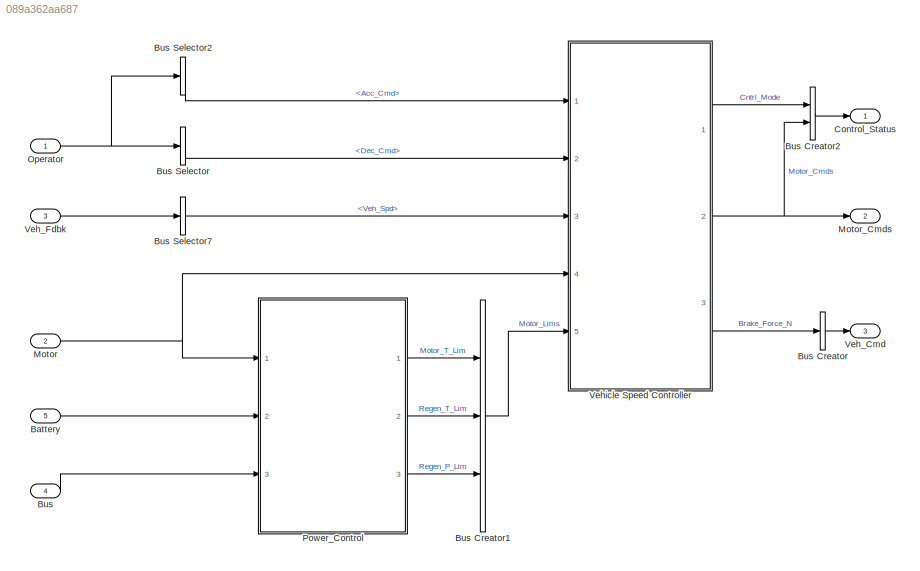
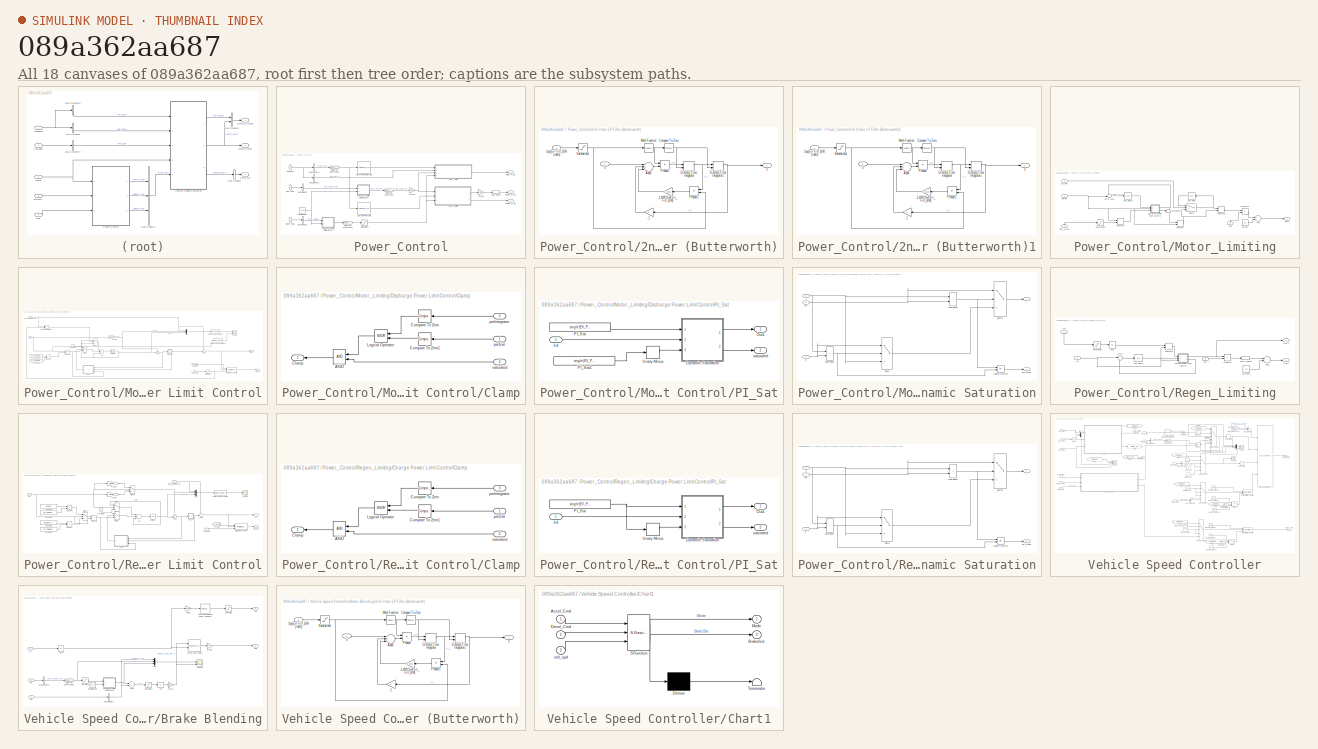
[diagram: thumbnail index - all 18 canvases of the model, root first then tree order]
MODEL slx_089a362aa687
KIND model
CONFIG InitFcn = %EV_Param_Update \n% update the number of strings (discretized)\nnumStrings = round(Opti_numStrings);\n%disp(['Number of strings: ' num2str(numStrings)])\n% update the effective capacity based on the number of strings\nEV_Param.Battery_Det.Rated_Capacity = 28.5*numStrings; %A*hr\nEV_Param.Battery_Det.DP = 1.5*fliplr([1500 1500 1600 1450 1325 1125 925 675 425 175 ])./8*EV_Param.Battery_Det.Rated_Capacity...<+1192ch>
BLOCK [Inport] Battery
  BusOutputAsStruct = on
  IconDisplay = Port number
  OutDataTypeStr = Bus: Batt_Fdbk
  Port = 5
BLOCK [Inport] Bus
  BusOutputAsStruct = on
  IconDisplay = Port number
  OutDataTypeStr = Bus: Bus_Fdbk
  Port = 4
BLOCK [BusCreator] Bus Creator
  DisplayOption = bar
  Inputs = 1
  Ports = [1, 1]
BLOCK [BusCreator] Bus Creator1
  DisplayOption = bar
  Inputs = 3
  Ports = [3, 1]
BLOCK [BusCreator] Bus Creator2
  DisplayOption = bar
  Inputs = 2
  Ports = [2, 1]
BLOCK [BusSelector] Bus Selector
  OutputSignals = Dec_Cmd
  Ports = [1, 1]
BLOCK [BusSelector] Bus Selector2
  OutputSignals = Acc_Cmd
  Ports = [1, 1]
BLOCK [BusSelector] Bus Selector7
  OutputSignals = Veh_Spd
  Ports = [1, 1]
BLOCK [Outport] Control_Status
  IconDisplay = Port number
  OutDataTypeStr = Bus: Cntrl_Status
BLOCK [Inport] Motor
  BusOutputAsStruct = on
  IconDisplay = Port number
  OutDataTypeStr = Bus: Motor_Sys_Fdbk
  Port = 2
BLOCK [Outport] Motor_Cmds
  IconDisplay = Port number
  OutDataTypeStr = Bus: Motor_Cmds
  Port = 2
BLOCK [Inport] Operator
  IconDisplay = Port number
  OutDataTypeStr = Bus: Op_Cmds
BLOCK [SubSystem] Power_Control
  FunctionWithSeparateData = off
  MaskHideContents = off
  MinAlgLoopOccurrences = off
  Opaque = off
  Ports = [3, 3]
  PropExecContextOutsideSubsystem = off
  RTWSystemCode = Auto
  RequestExecContextInheritance = off
BLOCK [SubSystem] Power_Control/2nd Order LP Filter (Butterworth)
  FunctionWithSeparateData = off
  MaskHideContents = off
  MinAlgLoopOccurrences = off
  Opaque = off
  Ports = [2, 1]
  PropExecContextOutsideSubsystem = off
  RTWSystemCode = Auto
  RequestExecContextInheritance = off
BLOCK [Gain] Power_Control/2nd Order LP Filter (Butterworth)/-1
  Gain = -1
  OutDataTypeStr = Inherit: Inherit via internal rule
  ParamDataTypeStr = Inherit: Inherit via internal rule
  SaturateOnIntegerOverflow = off
BLOCK [Gain] Power_Control/2nd Order LP Filter (Butterworth)/-1.4142//(Spd_Err_Filt_BW)
  Gain = -1.4142
  OutDataTypeStr = Inherit: Inherit via internal rule
  ParamDataTypeStr = Inherit: Inherit via internal rule
  SaturateOnIntegerOverflow = off
BLOCK [Sum] Power_Control/2nd Order LP Filter (Butterworth)/Add4
  InputSameDT = off
  Inputs = +++
  OutDataTypeStr = Inherit: Inherit via internal rule
  Ports = [3, 1]
  SaturateOnIntegerOverflow = off
BLOCK [Reference] Power_Control/2nd Order LP Filter (Butterworth)/Compare To Zero  REF=simulink/Logic and Bit
Operations/Compare
To Zero
  OutDataTypeStr = uint8
  Ports = [1, 1]
  SourceBlock = simulink/Logic and Bit\nOperations/Compare\nTo Zero
  SourceType = Compare To Zero
  ZeroCross = on
  relop = <=
BLOCK [DiscreteIntegrator] Power_Control/2nd Order LP Filter (Butterworth)/Discrete-Time Integrator
  ExternalReset = rising
  ICPrevOutput = DiscIntNeverNeededParam
  ICPrevScaledInput = DiscIntNeverNeededParam
  Ports = [2, 1]
  SampleTime = DT
BLOCK [DiscreteIntegrator] Power_Control/2nd Order LP Filter (Butterworth)/Discrete-Time Integrator1
  ExternalReset = rising
  ICPrevOutput = DiscIntNeverNeededParam
  ICPrevScaledInput = DiscIntNeverNeededParam
  Ports = [2, 1]
  SampleTime = DT
BLOCK [Math] Power_Control/2nd Order LP Filter (Butterworth)/Math Function
  Operator = square
  Ports = [1, 1]
BLOCK [Product] Power_Control/2nd Order LP Filter (Butterworth)/Product
  InputSameDT = off
  OutDataTypeStr = Inherit: Inherit via internal rule
  Ports = [2, 1]
  SaturateOnIntegerOverflow = off
BLOCK [Product] Power_Control/2nd Order LP Filter (Butterworth)/Product1
  InputSameDT = off
  Inputs = */
  OutDataTypeStr = Inherit: Inherit via internal rule
  Ports = [2, 1]
  SaturateOnIntegerOverflow = off
BLOCK [Saturate] Power_Control/2nd Order LP Filter (Butterworth)/Saturation1
  InputPortMap = u0
  LowerLimit = .001
  Ports = [1, 1]
  UpperLimit = 2*pi*5000
BLOCK [Inport] Power_Control/2nd Order LP Filter (Butterworth)/Spd_Err_Filt_BW [rad//s]
  IconDisplay = Port number
  Port = 2
BLOCK [Inport] Power_Control/2nd Order LP Filter (Butterworth)/u
  IconDisplay = Port number
BLOCK [Outport] Power_Control/2nd Order LP Filter (Butterworth)/y
  IconDisplay = Port number
BLOCK [SubSystem] Power_Control/2nd Order LP Filter (Butterworth)1
  FunctionWithSeparateData = off
  MaskHideContents = off
  MinAlgLoopOccurrences = off
  Opaque = off
  Ports = [2, 1]
  PropExecContextOutsideSubsystem = off
  RTWSystemCode = Auto
  RequestExecContextInheritance = off
BLOCK [Gain] Power_Control/2nd Order LP Filter (Butterworth)1/-1
  Gain = -1
  OutDataTypeStr = Inherit: Inherit via internal rule
  ParamDataTypeStr = Inherit: Inherit via internal rule
  SaturateOnIntegerOverflow = off
BLOCK [Gain] Power_Control/2nd Order LP Filter (Butterworth)1/-1.4142//(Spd_Err_Filt_BW)
  Gain = -1.4142
  OutDataTypeStr = Inherit: Inherit via internal rule
  ParamDataTypeStr = Inherit: Inherit via internal rule
  SaturateOnIntegerOverflow = off
BLOCK [Sum] Power_Control/2nd Order LP Filter (Butterworth)1/Add4
  InputSameDT = off
  Inputs = +++
  OutDataTypeStr = Inherit: Inherit via internal rule
  Ports = [3, 1]
  SaturateOnIntegerOverflow = off
BLOCK [Reference] Power_Control/2nd Order LP Filter (Butterworth)1/Compare To Zero  REF=simulink/Logic and Bit
Operations/Compare
To Zero
  OutDataTypeStr = uint8
  Ports = [1, 1]
  SourceBlock = simulink/Logic and Bit\nOperations/Compare\nTo Zero
  SourceType = Compare To Zero
  ZeroCross = on
  relop = <=
BLOCK [DiscreteIntegrator] Power_Control/2nd Order LP Filter (Butterworth)1/Discrete-Time Integrator
  ExternalReset = rising
  ICPrevOutput = DiscIntNeverNeededParam
  ICPrevScaledInput = DiscIntNeverNeededParam
  Ports = [2, 1]
  SampleTime = DT
BLOCK [DiscreteIntegrator] Power_Control/2nd Order LP Filter (Butterworth)1/Discrete-Time Integrator1
  ExternalReset = rising
  ICPrevOutput = DiscIntNeverNeededParam
  ICPrevScaledInput = DiscIntNeverNeededParam
  Ports = [2, 1]
  SampleTime = DT
BLOCK [Math] Power_Control/2nd Order LP Filter (Butterworth)1/Math Function
  Operator = square
  Ports = [1, 1]
BLOCK [Product] Power_Control/2nd Order LP Filter (Butterworth)1/Product
  InputSameDT = off
  OutDataTypeStr = Inherit: Inherit via internal rule
  Ports = [2, 1]
  SaturateOnIntegerOverflow = off
BLOCK [Product] Power_Control/2nd Order LP Filter (Butterworth)1/Product1
  InputSameDT = off
  Inputs = */
  OutDataTypeStr = Inherit: Inherit via internal rule
  Ports = [2, 1]
  SaturateOnIntegerOverflow = off
BLOCK [Saturate] Power_Control/2nd Order LP Filter (Butterworth)1/Saturation1
  InputPortMap = u0
  LowerLimit = .001
  Ports = [1, 1]
  UpperLimit = 2*pi*5000
BLOCK [Inport] Power_Control/2nd Order LP Filter (Butterworth)1/Spd_Err_Filt_BW [rad//s]
  IconDisplay = Port number
  Port = 2
BLOCK [Inport] Power_Control/2nd Order LP Filter (Butterworth)1/u
  IconDisplay = Port number
BLOCK [Outport] Power_Control/2nd Order LP Filter (Butterworth)1/y
  IconDisplay = Port number
BLOCK [Inport] Power_Control/Batt_Fdbk
  IconDisplay = Port number
  OutDataTypeStr = Bus: Batt_Fdbk
  Port = 2
BLOCK [BusSelector] Power_Control/Bus Selector
  OutputSignals = Bus_Power_kW
  Ports = [1, 1]
BLOCK [BusSelector] Power_Control/Bus Selector1
  OutputSignals = Motor_Fdbk.rotor_velocity
  Ports = [1, 1]
BLOCK [BusSelector] Power_Control/Bus Selector2
  OutputSignals = SOC_prct
  Ports = [1, 1]
BLOCK [BusSelector] Power_Control/Bus Selector3
  OutputSignals = Current_A
  Ports = [1, 1]
BLOCK [Inport] Power_Control/Bus_Fdbk
  IconDisplay = Port number
  OutDataTypeStr = Bus: Bus_Fdbk
  Port = 3
BLOCK [Lookup_n-D] Power_Control/Charge Power Limit
  BeginIndexSearchUsingPreviousIndexResult = on
  BreakpointsForDimension1 = EV_Param.Battery_Det.SOC
  InternalRulePriority = Speed
  NumberOfTableDimensions = 1
  Ports = [1, 1]
  RndMeth = Simplest
  Table = EV_Param.Battery_Det.CP
BLOCK [Constant] Power_Control/Cut-off [radps]
  OutDataTypeStr = single
  SampleTime = -1
  Value = 2*2*pi
BLOCK [DataTypeConversion] Power_Control/Data Type Conversion
  OutDataTypeStr = single
  RndMeth = Floor
  SaturateOnIntegerOverflow = off
BLOCK [DataTypeConversion] Power_Control/Data Type Conversion1
  OutDataTypeStr = single
  RndMeth = Floor
  SaturateOnIntegerOverflow = off
BLOCK [DataTypeConversion] Power_Control/Data Type Conversion2
  OutDataTypeStr = single
  RndMeth = Floor
  SaturateOnIntegerOverflow = off
BLOCK [Lookup_n-D] Power_Control/Discharge Power Limit
  BeginIndexSearchUsingPreviousIndexResult = on
  BreakpointsForDimension1 = EV_Param.Battery_Det.SOC
  ExtrapMethod = Clip
  InternalRulePriority = Speed
  NumberOfTableDimensions = 1
  Ports = [1, 1]
  RndMeth = Simplest
  Table = EV_Param.Battery_Det.DP
  UseLastTableValue = on
BLOCK [Inport] Power_Control/Motor_Fdbk
  IconDisplay = Port number
  OutDataTypeStr = Bus: Motor_Sys_Fdbk
BLOCK [SubSystem] Power_Control/Motor_Limiting
  FunctionWithSeparateData = off
  MaskHideContents = off
  MinAlgLoopOccurrences = off
  Opaque = off
  Ports = [4, 1]
  PropExecContextOutsideSubsystem = off
  RTWSystemCode = Auto
  RequestExecContextInheritance = off
BLOCK [Sum] Power_Control/Motor_Limiting/Add
  InputSameDT = off
  OutDataTypeStr = Inherit: Inherit via internal rule
  Ports = [2, 1]
  SaturateOnIntegerOverflow = off
BLOCK [Inport] Power_Control/Motor_Limiting/Current
  IconDisplay = Port number
  Port = 2
BLOCK [SubSystem] Power_Control/Motor_Limiting/Discharge Power Limit Control
  FunctionWithSeparateData = off
  MaskHideContents = off
  MinAlgLoopOccurrences = off
  Opaque = off
  Ports = [3, 2]
  PropExecContextOutsideSubsystem = off
  RTWSystemCode = Auto
  RequestExecContextInheritance = off
BLOCK [Sum] Power_Control/Motor_Limiting/Discharge Power Limit Control/Add
  AttributesFormatString = -----------------------------\nMin = %<OutMin>\nMax = %<OutMax>\nSat = %<SaturateOnIntegerOverflow>
  InputSameDT = off
  Inputs = -++
  OutDataTypeStr = DT_PRECISION_HI
  OutMax = ctrlConst.CurrentMax*2
  OutMin = -ctrlConst.CurrentMax*2
  Ports = [3, 1]
BLOCK [SubSystem] Power_Control/Motor_Limiting/Discharge Power Limit Control/Clamp
  FunctionWithSeparateData = off
  MaskHideContents = off
  MinAlgLoopOccurrences = off
  Opaque = off
  Ports = [3, 1]
  PropExecContextOutsideSubsystem = off
  RTWSystemCode = Auto
  RequestExecContextInheritance = off
BLOCK [Logic] Power_Control/Motor_Limiting/Discharge Power Limit Control/Clamp/AND
  OutDataTypeStr = boolean
  Ports = [2, 1]
BLOCK [Outport] Power_Control/Motor_Limiting/Discharge Power Limit Control/Clamp/Clamp
  IconDisplay = Port number
BLOCK [Reference] Power_Control/Motor_Limiting/Discharge Power Limit Control/Clamp/Compare To Zero  REF=simulink/Logic and Bit
Operations/Compare
To Zero
  OutDataTypeStr = boolean
  Ports = [1, 1]
  SourceBlock = simulink/Logic and Bit\nOperations/Compare\nTo Zero
  SourceType = Compare To Zero
  ZeroCross = on
  relop = <=
BLOCK [Reference] Power_Control/Motor_Limiting/Discharge Power Limit Control/Clamp/Compare To Zero1  REF=simulink/Logic and Bit
Operations/Compare
To Zero
  OutDataTypeStr = boolean
  Ports = [1, 1]
  SourceBlock = simulink/Logic and Bit\nOperations/Compare\nTo Zero
  SourceType = Compare To Zero
  ZeroCross = on
  relop = <=
BLOCK [Logic] Power_Control/Motor_Limiting/Discharge Power Limit Control/Clamp/Logical Operator
  AllPortsSameDT = off
  Operator = NXOR
  OutDataTypeStr = boolean
  Ports = [2, 1]
BLOCK [Inport] Power_Control/Motor_Limiting/Discharge Power Limit Control/Clamp/preIntegrator
  IconDisplay = Port number
  Port = 3
BLOCK [Inport] Power_Control/Motor_Limiting/Discharge Power Limit Control/Clamp/preSat
  IconDisplay = Port number
BLOCK [Inport] Power_Control/Motor_Limiting/Discharge Power Limit Control/Clamp/saturated
  IconDisplay = Port number
  Port = 2
BLOCK [Constant] Power_Control/Motor_Limiting/Discharge Power Limit Control/Constant
  OutDataTypeStr = Inherit: Inherit via back propagation
  PreserveConstantTs = on
  SampleTime = -1
  Value = 0
BLOCK [Constant] Power_Control/Motor_Limiting/Discharge Power Limit Control/Constant1
  SampleTime = -1
  Value = EV_Param.Battery_Det.PowerKi*.125
BLOCK [Constant] Power_Control/Motor_Limiting/Discharge Power Limit Control/Constant2
  OutDataTypeStr = DT_PRECISION_LO
  SampleTime = -1
  Value = EV_Param.Control.Pwr_Cntrl_TS
BLOCK [DataTypeConversion] Power_Control/Motor_Limiting/Discharge Power Limit Control/Data Type Conversion
  OutDataTypeStr = double
  RndMeth = Floor
  SaturateOnIntegerOverflow = off
BLOCK [DataTypeConversion] Power_Control/Motor_Limiting/Discharge Power Limit Control/Data Type Conversion1
  OutDataTypeStr = double
  RndMeth = Floor
  SaturateOnIntegerOverflow = off
BLOCK [Inport] Power_Control/Motor_Limiting/Discharge Power Limit Control/Err
  IconDisplay = Port number
BLOCK [Inport] Power_Control/Motor_Limiting/Discharge Power Limit Control/Input_Disturbance
  IconDisplay = Port number
  Port = 3
BLOCK [Outport] Power_Control/Motor_Limiting/Discharge Power Limit Control/Lim_Out
  IconDisplay = Port number
  Port = 2
BLOCK [Mux] Power_Control/Motor_Limiting/Discharge Power Limit Control/Mux
  DisplayOption = bar
  Inputs = 3
  Ports = [3, 1]
BLOCK [Outport] Power_Control/Motor_Limiting/Discharge Power Limit Control/Out
  IconDisplay = Port number
BLOCK [SubSystem] Power_Control/Motor_Limiting/Discharge Power Limit Control/PI_Sat
  FunctionWithSeparateData = off
  MaskHideContents = off
  MinAlgLoopOccurrences = off
  Opaque = off
  Ports = [1, 2]
  PropExecContextOutsideSubsystem = off
  RTWSystemCode = Auto
  RequestExecContextInheritance = off
BLOCK [SubSystem] Power_Control/Motor_Limiting/Discharge Power Limit Control/PI_Sat/Dynamic Saturation
  FunctionWithSeparateData = off
  MaskHideContents = off
  MinAlgLoopOccurrences = off
  Opaque = off
  Ports = [3, 2]
  PropExecContextOutsideSubsystem = off
  RTWSystemCode = Auto
  RequestExecContextInheritance = off
BLOCK [Logic] Power_Control/Motor_Limiting/Discharge Power Limit Control/PI_Sat/Dynamic Saturation/Logical Operator
  AllPortsSameDT = off
  Operator = OR
  OutDataTypeStr = boolean
  Ports = [2, 1]
BLOCK [RelationalOperator] Power_Control/Motor_Limiting/Discharge Power Limit Control/PI_Sat/Dynamic Saturation/LowerRelop1
  DisableCoverage = on
  InputSameDT = off
  Operator = >
  OutDataTypeStr = boolean
  Ports = [2, 1]
BLOCK [Switch] Power_Control/Motor_Limiting/Discharge Power Limit Control/PI_Sat/Dynamic Saturation/Switch
  Criteria = u2 ~= 0
  InputSameDT = off
  SaturateOnIntegerOverflow = off
  ZeroCross = off
BLOCK [Switch] Power_Control/Motor_Limiting/Discharge Power Limit Control/PI_Sat/Dynamic Saturation/Switch2
  Criteria = u2 ~= 0
  InputSameDT = off
  SaturateOnIntegerOverflow = off
  ZeroCross = off
BLOCK [RelationalOperator] Power_Control/Motor_Limiting/Discharge Power Limit Control/PI_Sat/Dynamic Saturation/UpperRelop
  DisableCoverage = on
  InputSameDT = off
  Operator = <
  OutDataTypeStr = boolean
  Ports = [2, 1]
BLOCK [Inport] Power_Control/Motor_Limiting/Discharge Power Limit Control/PI_Sat/Dynamic Saturation/lo
  IconDisplay = Port number
  Port = 3
BLOCK [Outport] Power_Control/Motor_Limiting/Discharge Power Limit Control/PI_Sat/Dynamic Saturation/sat_mode
  IconDisplay = Port number
  Port = 2
BLOCK [Inport] Power_Control/Motor_Limiting/Discharge Power Limit Control/PI_Sat/Dynamic Saturation/u
  IconDisplay = Port number
  Port = 2
BLOCK [Inport] Power_Control/Motor_Limiting/Discharge Power Limit Control/PI_Sat/Dynamic Saturation/up
  IconDisplay = Port number
BLOCK [Outport] Power_Control/Motor_Limiting/Discharge Power Limit Control/PI_Sat/Dynamic Saturation/y
  IconDisplay = Port number
BLOCK [Inport] Power_Control/Motor_Limiting/Discharge Power Limit Control/PI_Sat/In1
  IconDisplay = Port number
BLOCK [Outport] Power_Control/Motor_Limiting/Discharge Power Limit Control/PI_Sat/Out1
  IconDisplay = Port number
BLOCK [Constant] Power_Control/Motor_Limiting/Discharge Power Limit Control/PI_Sat/PI_Sat
  PreserveConstantTs = on
  Value = single(EV_Param.Battery_Det.DischargePowerPISat)*1.5
BLOCK [Constant] Power_Control/Motor_Limiting/Discharge Power Limit Control/PI_Sat/PI_Sat1
  PreserveConstantTs = on
  Value = single(EV_Param.Battery_Det.DischargePowerPISat)*.25
BLOCK [UnaryMinus] Power_Control/Motor_Limiting/Discharge Power Limit Control/PI_Sat/Unary Minus
BLOCK [Outport] Power_Control/Motor_Limiting/Discharge Power Limit Control/PI_Sat/saturated
  IconDisplay = Port number
  Port = 2
BLOCK [Constant] Power_Control/Motor_Limiting/Discharge Power Limit Control/PI_Sat1
  PreserveConstantTs = on
  SampleTime = -1
  Value = EV_Param.Battery_Det.DischargePowerPISat*0+100e3
BLOCK [Gain] Power_Control/Motor_Limiting/Discharge Power Limit Control/P_Gain
  AttributesFormatString = -----------------------------\n%<Gain>
  Gain = single(EV_Param.Battery_Det.PowerKp)
  OutDataTypeStr = Inherit: Inherit via internal rule
  ParamDataTypeStr = Inherit: Inherit from 'Gain'
  SaturateOnIntegerOverflow = off
BLOCK [Inport] Power_Control/Motor_Limiting/Discharge Power Limit Control/Power_Min
  IconDisplay = Port number
  Port = 2
BLOCK [Product] Power_Control/Motor_Limiting/Discharge Power Limit Control/Product
  InputSameDT = off
  OutDataTypeStr = single
  Ports = [2, 1]
  RndMeth = Floor
  SaturateOnIntegerOverflow = off
BLOCK [Product] Power_Control/Motor_Limiting/Discharge Power Limit Control/Product1
  InputSameDT = off
  OutDataTypeStr = single
  Ports = [2, 1]
  RndMeth = Floor
  SaturateOnIntegerOverflow = off
BLOCK [RelationalOperator] Power_Control/Motor_Limiting/Discharge Power Limit Control/Relational Operator
  InputSameDT = off
  Operator = <
  OutDataTypeStr = boolean
  Ports = [2, 1]
BLOCK [Reference] Power_Control/Motor_Limiting/Discharge Power Limit Control/Saturation Dynamic  REF=simulink/Discontinuities/Saturation
Dynamic
  DoSatur = off
  LockScale = off
  OutDataType = fixdt(1, 16)
  OutDataTypeStr = Inherit: Same as second input
  OutMax = []
  OutMin = []
  OutScaling = 2^-10
  OutputDataTypeScalingMode = Same as second input
  Ports = [3, 1]
  RndMeth = Floor
  SourceBlock = simulink/Discontinuities/Saturation\nDynamic
  SourceType = Saturation Dynamic
BLOCK [Saturate] Power_Control/Motor_Limiting/Discharge Power Limit Control/Saturation1
  InputPortMap = u0
  LowerLimit = 0
  Ports = [1, 1]
  UpperLimit = max(EV_Param.Battery_Det.DP)
BLOCK [Scope] Power_Control/Motor_Limiting/Discharge Power Limit Control/Scope
  DataFormat = StructureWithTime
  Floating = off
  LimitDataPoints = off
  NumInputPorts = 2
  Ports = [2]
  SampleTime = 0
  SaveName = ScopeData19
  ShowLegends = off
  TimeRange = 18
  YMax = 65000~0
  YMin = -5000~-52500
  ZoomMode = yonly
BLOCK [Sum] Power_Control/Motor_Limiting/Discharge Power Limit Control/Sum
  IconShape = round
  InputSameDT = off
  Inputs = ++|
  OutDataTypeStr = Inherit: Inherit via internal rule
  Ports = [2, 1]
  SaturateOnIntegerOverflow = off
BLOCK [Sum] Power_Control/Motor_Limiting/Discharge Power Limit Control/Sum1
  IconShape = round
  InputSameDT = off
  Inputs = ++|
  OutDataTypeStr = Inherit: Inherit via internal rule
  Ports = [2, 1]
  SaturateOnIntegerOverflow = off
BLOCK [Switch] Power_Control/Motor_Limiting/Discharge Power Limit Control/Switch
  Criteria = u2 > Threshold
  SaturateOnIntegerOverflow = off
BLOCK [Switch] Power_Control/Motor_Limiting/Discharge Power Limit Control/Switch1
  Criteria = u2 > Threshold
  SaturateOnIntegerOverflow = off
BLOCK [UnitDelay] Power_Control/Motor_Limiting/Discharge Power Limit Control/Unit Delay
  InputProcessing = Elements as channels (sample based)
  SampleTime = -1
BLOCK [Sum] Power_Control/Motor_Limiting/Error Sum
  IconShape = round
  InputSameDT = off
  Inputs = -+|
  OutDataTypeStr = DT_PRECISION_LO
  OutMax = 2*ctrlConst.VelocityMax
  OutMin = -2*ctrlConst.VelocityMax
  Ports = [2, 1]
  SaturateOnIntegerOverflow = off
BLOCK [MinMax] Power_Control/Motor_Limiting/MinMax2
  Function = max
  InputSameDT = off
  Inputs = 2
  Ports = [2, 1]
  SaturateOnIntegerOverflow = off
BLOCK [MinMax] Power_Control/Motor_Limiting/MinMax3
  InputSameDT = off
  Inputs = 2
  Ports = [2, 1]
  SaturateOnIntegerOverflow = off
BLOCK [MinMax] Power_Control/Motor_Limiting/MinMax4
  Function = max
  InputSameDT = off
  Inputs = 2
  Ports = [2, 1]
  SaturateOnIntegerOverflow = off
BLOCK [Constant] Power_Control/Motor_Limiting/Offset
  OutDataTypeStr = single
  SampleTime = -1
  Value = 25
BLOCK [Outport] Power_Control/Motor_Limiting/Out2
  IconDisplay = Port number
BLOCK [Product] Power_Control/Motor_Limiting/Product3
  InputSameDT = off
  Inputs = */
  OutDataTypeStr = Inherit: Inherit via internal rule
  Ports = [2, 1]
  RndMeth = Floor
  SaturateOnIntegerOverflow = off
BLOCK [Inport] Power_Control/Motor_Limiting/PwrRef
  IconDisplay = Port number
BLOCK [Inport] Power_Control/Motor_Limiting/Pwr_Actual
  IconDisplay = Port number
  Port = 3
BLOCK [Saturate] Power_Control/Motor_Limiting/Saturation1
  InputPortMap = u0
  LowerLimit = 0
  Ports = [1, 1]
  UpperLimit = 100e3
BLOCK [Inport] Power_Control/Motor_Limiting/Spd
  IconDisplay = Port number
  Port = 4
BLOCK [Switch] Power_Control/Motor_Limiting/Switch
  InputSameDT = off
  SaturateOnIntegerOverflow = off
  Threshold = 250
BLOCK [Terminator] Power_Control/Motor_Limiting/Terminator
BLOCK [UnitDelay] Power_Control/Motor_Limiting/Unit Delay
  InputProcessing = Elements as channels (sample based)
  SampleTime = -1
BLOCK [UnitDelay] Power_Control/Motor_Limiting/Unit Delay2
  InputProcessing = Elements as channels (sample based)
  SampleTime = -1
BLOCK [Outport] Power_Control/Motor_T_Lim
  IconDisplay = Port number
BLOCK [SubSystem] Power_Control/Regen_Limiting
  FunctionWithSeparateData = off
  MaskHideContents = off
  MinAlgLoopOccurrences = off
  Opaque = off
  Ports = [3, 2]
  PropExecContextOutsideSubsystem = off
  RTWSystemCode = Auto
  RequestExecContextInheritance = off
BLOCK [Abs] Power_Control/Regen_Limiting/Abs3
  SaturateOnIntegerOverflow = off
BLOCK [Sum] Power_Control/Regen_Limiting/Add1
  InputSameDT = off
  Inputs = +-
  OutDataTypeStr = Inherit: Inherit via internal rule
  Ports = [2, 1]
  SaturateOnIntegerOverflow = off
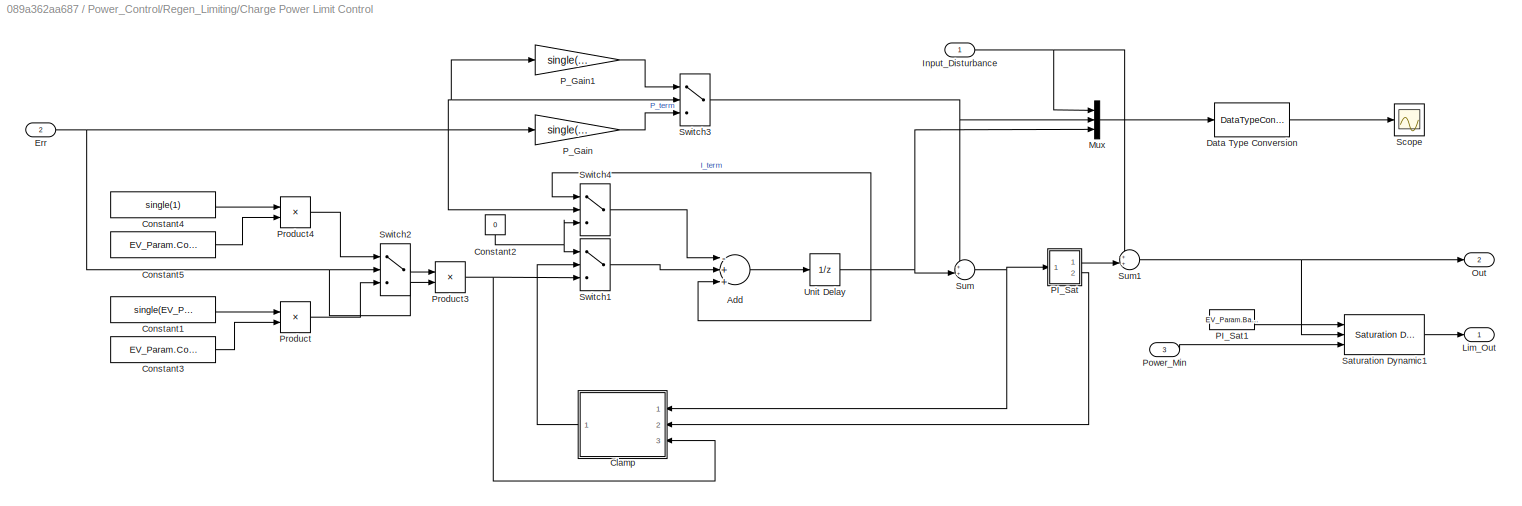
BLOCK [SubSystem] Power_Control/Regen_Limiting/Charge Power Limit Control
  FunctionWithSeparateData = off
  MaskHideContents = off
  MinAlgLoopOccurrences = off
  Opaque = off
  Ports = [3, 2]
  PropExecContextOutsideSubsystem = off
  RTWSystemCode = Auto
  RequestExecContextInheritance = off
BLOCK [Sum] Power_Control/Regen_Limiting/Charge Power Limit Control/Add
  AttributesFormatString = -----------------------------\nMin = %<OutMin>\nMax = %<OutMax>\nSat = %<SaturateOnIntegerOverflow>
  InputSameDT = off
  Inputs = -++
  OutDataTypeStr = DT_PRECISION_HI
  OutMax = ctrlConst.CurrentMax*2
  OutMin = -ctrlConst.CurrentMax*2
  Ports = [3, 1]
BLOCK [SubSystem] Power_Control/Regen_Limiting/Charge Power Limit Control/Clamp
  FunctionWithSeparateData = off
  MaskHideContents = off
  MinAlgLoopOccurrences = off
  Opaque = off
  Ports = [3, 1]
  PropExecContextOutsideSubsystem = off
  RTWSystemCode = Auto
  RequestExecContextInheritance = off
BLOCK [Logic] Power_Control/Regen_Limiting/Charge Power Limit Control/Clamp/AND
  OutDataTypeStr = boolean
  Ports = [2, 1]
BLOCK [Outport] Power_Control/Regen_Limiting/Charge Power Limit Control/Clamp/Clamp
  IconDisplay = Port number
BLOCK [Reference] Power_Control/Regen_Limiting/Charge Power Limit Control/Clamp/Compare To Zero  REF=simulink/Logic and Bit
Operations/Compare
To Zero
  OutDataTypeStr = boolean
  Ports = [1, 1]
  SourceBlock = simulink/Logic and Bit\nOperations/Compare\nTo Zero
  SourceType = Compare To Zero
  ZeroCross = on
  relop = <=
BLOCK [Reference] Power_Control/Regen_Limiting/Charge Power Limit Control/Clamp/Compare To Zero1  REF=simulink/Logic and Bit
Operations/Compare
To Zero
  OutDataTypeStr = boolean
  Ports = [1, 1]
  SourceBlock = simulink/Logic and Bit\nOperations/Compare\nTo Zero
  SourceType = Compare To Zero
  ZeroCross = on
  relop = <=
BLOCK [Logic] Power_Control/Regen_Limiting/Charge Power Limit Control/Clamp/Logical Operator
  AllPortsSameDT = off
  Operator = NXOR
  OutDataTypeStr = boolean
  Ports = [2, 1]
BLOCK [Inport] Power_Control/Regen_Limiting/Charge Power Limit Control/Clamp/preIntegrator
  IconDisplay = Port number
  Port = 3
BLOCK [Inport] Power_Control/Regen_Limiting/Charge Power Limit Control/Clamp/preSat
  IconDisplay = Port number
BLOCK [Inport] Power_Control/Regen_Limiting/Charge Power Limit Control/Clamp/saturated
  IconDisplay = Port number
  Port = 2
BLOCK [Constant] Power_Control/Regen_Limiting/Charge Power Limit Control/Constant1
  SampleTime = -1
  Value = single(EV_Param.Battery_Det.ChargePowerKi)
BLOCK [Constant] Power_Control/Regen_Limiting/Charge Power Limit Control/Constant2
  OutDataTypeStr = Inherit: Inherit via back propagation
  PreserveConstantTs = on
  Value = 0
BLOCK [Constant] Power_Control/Regen_Limiting/Charge Power Limit Control/Constant3
  OutDataTypeStr = DT_PRECISION_LO
  SampleTime = -1
  Value = EV_Param.Control.Pwr_Cntrl_TS
BLOCK [Constant] Power_Control/Regen_Limiting/Charge Power Limit Control/Constant4
  SampleTime = -1
  Value = single(1)
BLOCK [Constant] Power_Control/Regen_Limiting/Charge Power Limit Control/Constant5
  OutDataTypeStr = DT_PRECISION_LO
  SampleTime = -1
  Value = EV_Param.Control.Pwr_Cntrl_TS
BLOCK [DataTypeConversion] Power_Control/Regen_Limiting/Charge Power Limit Control/Data Type Conversion
  OutDataTypeStr = double
  RndMeth = Floor
  SaturateOnIntegerOverflow = off
BLOCK [Inport] Power_Control/Regen_Limiting/Charge Power Limit Control/Err
  IconDisplay = Port number
  Port = 2
BLOCK [Inport] Power_Control/Regen_Limiting/Charge Power Limit Control/Input_Disturbance
  IconDisplay = Port number
BLOCK [Outport] Power_Control/Regen_Limiting/Charge Power Limit Control/Lim_Out
  IconDisplay = Port number
BLOCK [Mux] Power_Control/Regen_Limiting/Charge Power Limit Control/Mux
  DisplayOption = bar
  Inputs = 3
  Ports = [3, 1]
BLOCK [Outport] Power_Control/Regen_Limiting/Charge Power Limit Control/Out
  IconDisplay = Port number
  Port = 2
BLOCK [SubSystem] Power_Control/Regen_Limiting/Charge Power Limit Control/PI_Sat
  FunctionWithSeparateData = off
  MaskHideContents = off
  MinAlgLoopOccurrences = off
  Opaque = off
  Ports = [1, 2]
  PropExecContextOutsideSubsystem = off
  RTWSystemCode = Auto
  RequestExecContextInheritance = off
BLOCK [SubSystem] Power_Control/Regen_Limiting/Charge Power Limit Control/PI_Sat/Dynamic Saturation
  FunctionWithSeparateData = off
  MaskHideContents = off
  MinAlgLoopOccurrences = off
  Opaque = off
  Ports = [3, 2]
  PropExecContextOutsideSubsystem = off
  RTWSystemCode = Auto
  RequestExecContextInheritance = off
BLOCK [Logic] Power_Control/Regen_Limiting/Charge Power Limit Control/PI_Sat/Dynamic Saturation/Logical Operator
  AllPortsSameDT = off
  Operator = OR
  OutDataTypeStr = boolean
  Ports = [2, 1]
BLOCK [RelationalOperator] Power_Control/Regen_Limiting/Charge Power Limit Control/PI_Sat/Dynamic Saturation/LowerRelop1
  DisableCoverage = on
  InputSameDT = off
  Operator = >
  OutDataTypeStr = boolean
  Ports = [2, 1]
BLOCK [Switch] Power_Control/Regen_Limiting/Charge Power Limit Control/PI_Sat/Dynamic Saturation/Switch
  Criteria = u2 ~= 0
  InputSameDT = off
  SaturateOnIntegerOverflow = off
  ZeroCross = off
BLOCK [Switch] Power_Control/Regen_Limiting/Charge Power Limit Control/PI_Sat/Dynamic Saturation/Switch2
  Criteria = u2 ~= 0
  InputSameDT = off
  SaturateOnIntegerOverflow = off
  ZeroCross = off
BLOCK [RelationalOperator] Power_Control/Regen_Limiting/Charge Power Limit Control/PI_Sat/Dynamic Saturation/UpperRelop
  DisableCoverage = on
  InputSameDT = off
  Operator = <
  OutDataTypeStr = boolean
  Ports = [2, 1]
BLOCK [Inport] Power_Control/Regen_Limiting/Charge Power Limit Control/PI_Sat/Dynamic Saturation/lo
  IconDisplay = Port number
  Port = 3
BLOCK [Outport] Power_Control/Regen_Limiting/Charge Power Limit Control/PI_Sat/Dynamic Saturation/sat_mode
  IconDisplay = Port number
  Port = 2
BLOCK [Inport] Power_Control/Regen_Limiting/Charge Power Limit Control/PI_Sat/Dynamic Saturation/u
  IconDisplay = Port number
  Port = 2
BLOCK [Inport] Power_Control/Regen_Limiting/Charge Power Limit Control/PI_Sat/Dynamic Saturation/up
  IconDisplay = Port number
BLOCK [Outport] Power_Control/Regen_Limiting/Charge Power Limit Control/PI_Sat/Dynamic Saturation/y
  IconDisplay = Port number
BLOCK [Inport] Power_Control/Regen_Limiting/Charge Power Limit Control/PI_Sat/In1
  IconDisplay = Port number
BLOCK [Outport] Power_Control/Regen_Limiting/Charge Power Limit Control/PI_Sat/Out1
  IconDisplay = Port number
BLOCK [Constant] Power_Control/Regen_Limiting/Charge Power Limit Control/PI_Sat/PI_Sat
  PreserveConstantTs = on
  Value = single(EV_Param.Battery_Det.ChargePowerPISat)
BLOCK [UnaryMinus] Power_Control/Regen_Limiting/Charge Power Limit Control/PI_Sat/Unary Minus
BLOCK [Outport] Power_Control/Regen_Limiting/Charge Power Limit Control/PI_Sat/saturated
  IconDisplay = Port number
  Port = 2
BLOCK [Constant] Power_Control/Regen_Limiting/Charge Power Limit Control/PI_Sat1
  PreserveConstantTs = on
  Value = EV_Param.Battery_Det.ChargePowerPISat
BLOCK [Gain] Power_Control/Regen_Limiting/Charge Power Limit Control/P_Gain
  AttributesFormatString = -----------------------------\n%<Gain>
  Gain = single(EV_Param.Battery_Det.ChargePowerKp)
  OutDataTypeStr = Inherit: Inherit via internal rule
  ParamDataTypeStr = Inherit: Inherit from 'Gain'
  SaturateOnIntegerOverflow = off
BLOCK [Gain] Power_Control/Regen_Limiting/Charge Power Limit Control/P_Gain1
  AttributesFormatString = -----------------------------\n%<Gain>
  Gain = single(0.1)
  OutDataTypeStr = Inherit: Inherit via internal rule
  ParamDataTypeStr = Inherit: Inherit from 'Gain'
  SaturateOnIntegerOverflow = off
BLOCK [Inport] Power_Control/Regen_Limiting/Charge Power Limit Control/Power_Min
  IconDisplay = Port number
  Port = 3
BLOCK [Product] Power_Control/Regen_Limiting/Charge Power Limit Control/Product
  InputSameDT = off
  OutDataTypeStr = single
  Ports = [2, 1]
  RndMeth = Floor
  SaturateOnIntegerOverflow = off
BLOCK [Product] Power_Control/Regen_Limiting/Charge Power Limit Control/Product3
  InputSameDT = off
  OutDataTypeStr = single
  Ports = [2, 1]
  RndMeth = Floor
  SaturateOnIntegerOverflow = off
BLOCK [Product] Power_Control/Regen_Limiting/Charge Power Limit Control/Product4
  InputSameDT = off
  OutDataTypeStr = Inherit: Inherit via internal rule
  Ports = [2, 1]
  RndMeth = Floor
  SaturateOnIntegerOverflow = off
BLOCK [Reference] Power_Control/Regen_Limiting/Charge Power Limit Control/Saturation Dynamic1  REF=simulink/Discontinuities/Saturation
Dynamic
  DoSatur = off
  LockScale = off
  OutDataType = fixdt(1, 16)
  OutDataTypeStr = Inherit: Same as second input
  OutMax = []
  OutMin = []
  OutScaling = 2^-10
  OutputDataTypeScalingMode = Same as second input
  Ports = [3, 1]
  RndMeth = Floor
  SourceBlock = simulink/Discontinuities/Saturation\nDynamic
  SourceType = Saturation Dynamic
BLOCK [Scope] Power_Control/Regen_Limiting/Charge Power Limit Control/Scope
  DataFormat = StructureWithTime
  Floating = off
  LimitDataPoints = off
  NumInputPorts = 1
  Ports = [1]
  SampleTime = 0
  SaveName = ScopeData1
  ShowLegends = off
  TimeRange = 18
  YMax = 150000
  YMin = -75000
  ZoomMode = yonly
BLOCK [Sum] Power_Control/Regen_Limiting/Charge Power Limit Control/Sum
  IconShape = round
  InputSameDT = off
  Inputs = ++|
  OutDataTypeStr = Inherit: Inherit via internal rule
  Ports = [2, 1]
  SaturateOnIntegerOverflow = off
BLOCK [Sum] Power_Control/Regen_Limiting/Charge Power Limit Control/Sum1
  IconShape = round
  InputSameDT = off
  Inputs = ++|
  OutDataTypeStr = Inherit: Inherit via internal rule
  Ports = [2, 1]
  SaturateOnIntegerOverflow = off
BLOCK [Switch] Power_Control/Regen_Limiting/Charge Power Limit Control/Switch1
  Criteria = u2 > Threshold
  SaturateOnIntegerOverflow = off
BLOCK [Switch] Power_Control/Regen_Limiting/Charge Power Limit Control/Switch2
  Criteria = u2 > Threshold
  SaturateOnIntegerOverflow = off
BLOCK [Switch] Power_Control/Regen_Limiting/Charge Power Limit Control/Switch3
  Criteria = u2 > Threshold
  SaturateOnIntegerOverflow = off
BLOCK [Switch] Power_Control/Regen_Limiting/Charge Power Limit Control/Switch4
  Criteria = u2 > Threshold
  SaturateOnIntegerOverflow = off
BLOCK [UnitDelay] Power_Control/Regen_Limiting/Charge Power Limit Control/Unit Delay
  InputProcessing = Elements as channels (sample based)
  SampleTime = -1
BLOCK [Sum] Power_Control/Regen_Limiting/Error
  IconShape = round
  InputSameDT = off
  Inputs = |+-
  OutDataTypeStr = DT_PRECISION_LO
  OutMax = 2*ctrlConst.VelocityMax
  OutMin = -2*ctrlConst.VelocityMax
  Ports = [2, 1]
  SaturateOnIntegerOverflow = off
BLOCK [Inport] Power_Control/Regen_Limiting/In1
  IconDisplay = Port number
BLOCK [Inport] Power_Control/Regen_Limiting/In2
  IconDisplay = Port number
  Port = 2
BLOCK [Inport] Power_Control/Regen_Limiting/In3
  IconDisplay = Port number
  Port = 3
BLOCK [MinMax] Power_Control/Regen_Limiting/MinMax1
  Function = max
  InputSameDT = off
  Inputs = 2
  Ports = [2, 1]
  SaturateOnIntegerOverflow = off
BLOCK [Constant] Power_Control/Regen_Limiting/Offset1
  OutDataTypeStr = single
  SampleTime = -1
  Value = 20
BLOCK [Outport] Power_Control/Regen_Limiting/Out1
  IconDisplay = Port number
BLOCK [Outport] Power_Control/Regen_Limiting/Out2
  IconDisplay = Port number
  Port = 2
BLOCK [Product] Power_Control/Regen_Limiting/Product1
  InputSameDT = off
  Inputs = */
  OutDataTypeStr = Inherit: Inherit via internal rule
  Ports = [2, 1]
  RndMeth = Floor
  SaturateOnIntegerOverflow = off
BLOCK [Saturate] Power_Control/Regen_Limiting/Saturation
  InputPortMap = u0
  LowerLimit = -100e3
  Ports = [1, 1]
  UpperLimit = 0
BLOCK [UnaryMinus] Power_Control/Regen_Limiting/Unary Minus1
BLOCK [UnitDelay] Power_Control/Regen_Limiting/Unit Delay1
  InputProcessing = Elements as channels (sample based)
  SampleTime = -1
BLOCK [Outport] Power_Control/Regen_P_Lim
  IconDisplay = Port number
  Port = 3
BLOCK [Outport] Power_Control/Regen_T_Lim
  IconDisplay = Port number
  Port = 2
BLOCK [Saturate] Power_Control/Saturation3
  InputPortMap = u0
  LowerLimit = 100*pi/30
  Ports = [1, 1]
  UpperLimit = inf
BLOCK [UnaryMinus] Power_Control/Unary Minus2
BLOCK [Gain] Power_Control/W2kW
  Gain = 1e-3
  OutDataTypeStr = Inherit: Inherit via internal rule
  ParamDataTypeStr = Inherit: Inherit via internal rule
  SaturateOnIntegerOverflow = off
BLOCK [Gain] Power_Control/kW2W
  Gain = single(1e3)
  OutDataTypeStr = Inherit: Inherit via internal rule
  ParamDataTypeStr = Inherit: Inherit via internal rule
  SaturateOnIntegerOverflow = off
BLOCK [Outport] Veh_Cmd
  IconDisplay = Port number
  OutDataTypeStr = Bus: Veh_Cmds
  Port = 3
BLOCK [Inport] Veh_Fdbk
  IconDisplay = Port number
  OutDataTypeStr = Bus: Veh_Fdbk
  Port = 3
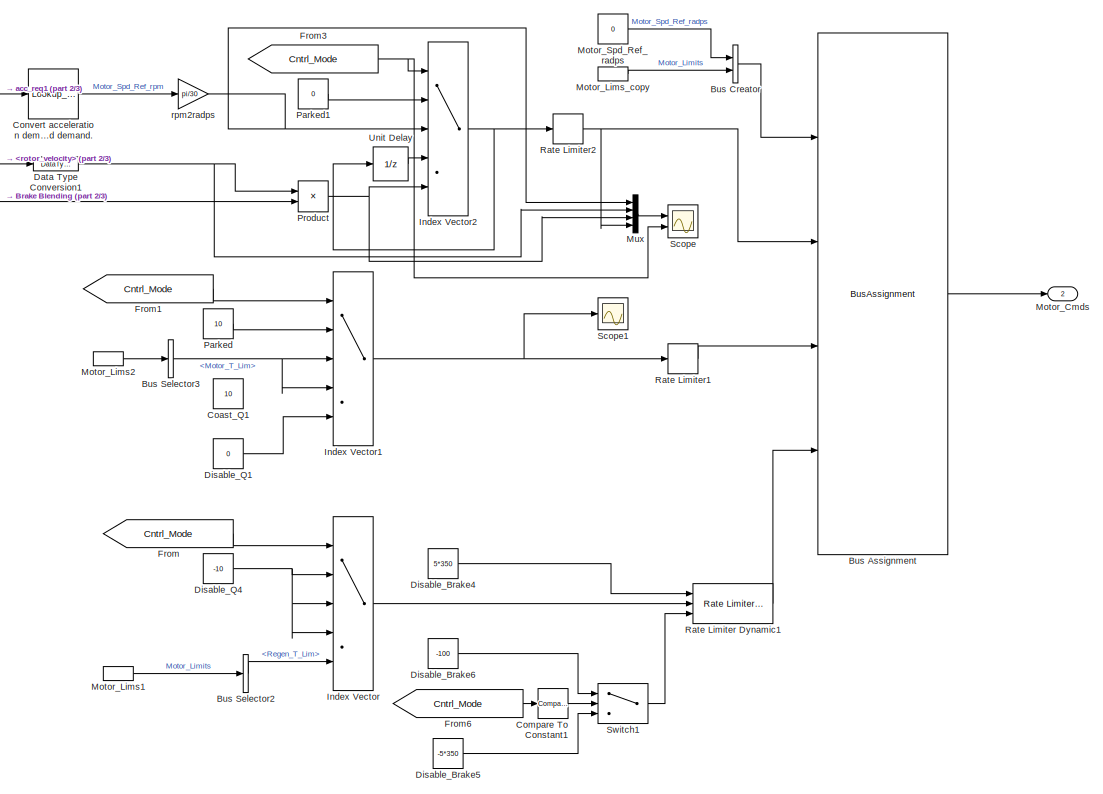
[diagram: Vehicle Speed Controller - part 1/3, middle right region]
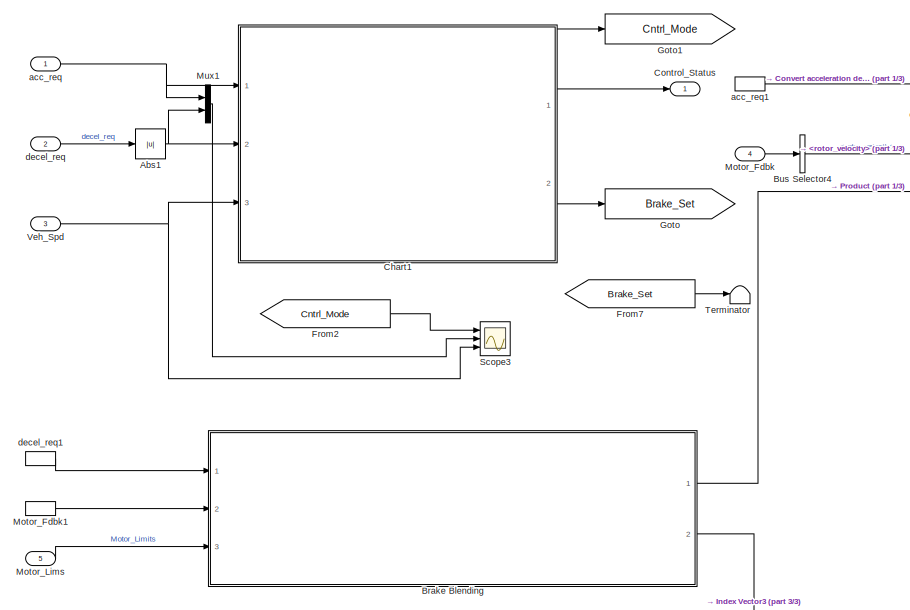
[diagram: Vehicle Speed Controller - part 2/3, top left region]
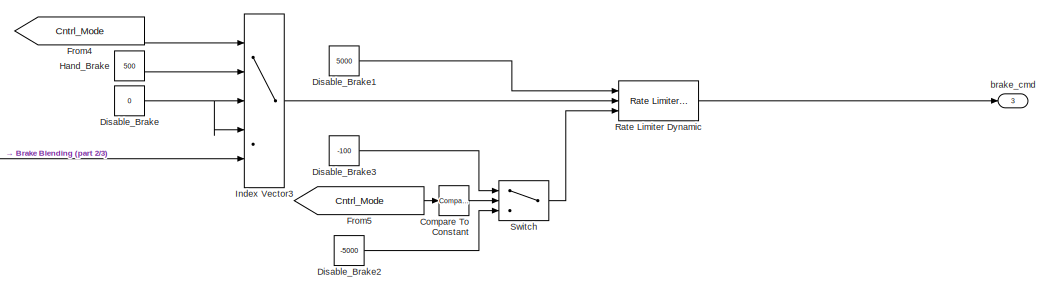
[diagram: Vehicle Speed Controller - part 3/3, bottom right region]
BLOCK [SubSystem] Vehicle Speed Controller
  FunctionWithSeparateData = off
  MaskHideContents = off
  MinAlgLoopOccurrences = off
  Opaque = off
  Ports = [5, 3]
  PropExecContextOutsideSubsystem = off
  RTWSystemCode = Auto
  RequestExecContextInheritance = off
BLOCK [Abs] Vehicle Speed Controller/Abs1
  SaturateOnIntegerOverflow = off
BLOCK [SubSystem] Vehicle Speed Controller/Brake Blending
  FunctionWithSeparateData = off
  MaskHideContents = off
  MinAlgLoopOccurrences = off
  Opaque = off
  Ports = [3, 2]
  PropExecContextOutsideSubsystem = off
  RTWSystemCode = Auto
  RequestExecContextInheritance = off
BLOCK [SubSystem] Vehicle Speed Controller/Brake Blending/2nd Order LP Filter (Butterworth)
  FunctionWithSeparateData = off
  MaskHideContents = off
  MinAlgLoopOccurrences = off
  Opaque = off
  Ports = [2, 1]
  PropExecContextOutsideSubsystem = off
  RTWSystemCode = Auto
  RequestExecContextInheritance = off
BLOCK [Gain] Vehicle Speed Controller/Brake Blending/2nd Order LP Filter (Butterworth)/-1
  Gain = -1
  OutDataTypeStr = Inherit: Inherit via internal rule
  ParamDataTypeStr = Inherit: Inherit via internal rule
  SaturateOnIntegerOverflow = off
BLOCK [Gain] Vehicle Speed Controller/Brake Blending/2nd Order LP Filter (Butterworth)/-1.4142//(Spd_Err_Filt_BW)
  Gain = -1.4142
  OutDataTypeStr = Inherit: Inherit via internal rule
  ParamDataTypeStr = Inherit: Inherit via internal rule
  SaturateOnIntegerOverflow = off
BLOCK [Sum] Vehicle Speed Controller/Brake Blending/2nd Order LP Filter (Butterworth)/Add4
  InputSameDT = off
  Inputs = +++
  OutDataTypeStr = Inherit: Inherit via internal rule
  Ports = [3, 1]
  SaturateOnIntegerOverflow = off
BLOCK [Reference] Vehicle Speed Controller/Brake Blending/2nd Order LP Filter (Butterworth)/Compare To Zero  REF=simulink/Logic and Bit
Operations/Compare
To Zero
  OutDataTypeStr = uint8
  Ports = [1, 1]
  SourceBlock = simulink/Logic and Bit\nOperations/Compare\nTo Zero
  SourceType = Compare To Zero
  ZeroCross = on
  relop = <=
BLOCK [DiscreteIntegrator] Vehicle Speed Controller/Brake Blending/2nd Order LP Filter (Butterworth)/Discrete-Time Integrator
  ExternalReset = rising
  ICPrevOutput = DiscIntNeverNeededParam
  ICPrevScaledInput = DiscIntNeverNeededParam
  Ports = [2, 1]
  SampleTime = DT
BLOCK [DiscreteIntegrator] Vehicle Speed Controller/Brake Blending/2nd Order LP Filter (Butterworth)/Discrete-Time Integrator1
  ExternalReset = rising
  ICPrevOutput = DiscIntNeverNeededParam
  ICPrevScaledInput = DiscIntNeverNeededParam
  Ports = [2, 1]
  SampleTime = DT
BLOCK [Math] Vehicle Speed Controller/Brake Blending/2nd Order LP Filter (Butterworth)/Math Function
  Operator = square
  Ports = [1, 1]
BLOCK [Product] Vehicle Speed Controller/Brake Blending/2nd Order LP Filter (Butterworth)/Product
  InputSameDT = off
  OutDataTypeStr = Inherit: Inherit via internal rule
  Ports = [2, 1]
  SaturateOnIntegerOverflow = off
BLOCK [Product] Vehicle Speed Controller/Brake Blending/2nd Order LP Filter (Butterworth)/Product1
  InputSameDT = off
  Inputs = */
  OutDataTypeStr = Inherit: Inherit via internal rule
  Ports = [2, 1]
  SaturateOnIntegerOverflow = off
BLOCK [Saturate] Vehicle Speed Controller/Brake Blending/2nd Order LP Filter (Butterworth)/Saturation1
  InputPortMap = u0
  LowerLimit = .001
  Ports = [1, 1]
  UpperLimit = 2*pi*5000
BLOCK [Inport] Vehicle Speed Controller/Brake Blending/2nd Order LP Filter (Butterworth)/Spd_Err_Filt_BW [rad//s]
  IconDisplay = Port number
  Port = 2
BLOCK [Inport] Vehicle Speed Controller/Brake Blending/2nd Order LP Filter (Butterworth)/u
  IconDisplay = Port number
BLOCK [Outport] Vehicle Speed Controller/Brake Blending/2nd Order LP Filter (Butterworth)/y
  IconDisplay = Port number
BLOCK [Abs] Vehicle Speed Controller/Brake Blending/Abs
  SaturateOnIntegerOverflow = off
BLOCK [Abs] Vehicle Speed Controller/Brake Blending/Abs2
  SaturateOnIntegerOverflow = off
BLOCK [Sum] Vehicle Speed Controller/Brake Blending/Add3
  InputSameDT = off
  Inputs = -+
  OutDataTypeStr = Inherit: Inherit via internal rule
  Ports = [2, 1]
  SaturateOnIntegerOverflow = off
BLOCK [Lookup_n-D] Vehicle Speed Controller/Brake Blending/Brake_Cmd_Table1
  BreakpointsForDimension1 = regen_pwr_vec
  BreakpointsForDimension2 = decel_cmd_vec
  ExtrapMethod = Clip
  InternalRulePriority = Speed
  Ports = [2, 1]
  RndMeth = Simplest
  Table = brake_cmd_table
  UseLastTableValue = on
BLOCK [BusSelector] Vehicle Speed Controller/Brake Blending/Bus Selector1
  OutputSignals = Regen_P_Lim
  Ports = [1, 1]
BLOCK [BusSelector] Vehicle Speed Controller/Brake Blending/Bus Selector5
  OutputSignals = Motor_Fdbk.Mech_Power_kW
  Ports = [1, 1]
BLOCK [Lookup_n-D] Vehicle Speed Controller/Brake Blending/Convert acceleration demand to motor speed demand.1
  BeginIndexSearchUsingPreviousIndexResult = on
  BreakpointsForDimension1 = [0 20]
  ExtrapMethod = Clip
  NumberOfTableDimensions = 1
  Ports = [1, 1]
  Table = [1 0]
  UseLastTableValue = on
BLOCK [Constant] Vehicle Speed Controller/Brake Blending/Cut-off [radps]
  OutDataTypeStr = single
  SampleTime = -1
  Value = 20*2*pi
BLOCK [DataTypeConversion] Vehicle Speed Controller/Brake Blending/Data Type Conversion2
  OutDataTypeStr = single
  RndMeth = Floor
  SaturateOnIntegerOverflow = off
BLOCK [Gain] Vehicle Speed Controller/Brake Blending/Gain1
  Gain = .125/3
  OutDataTypeStr = Inherit: Inherit via internal rule
  ParamDataTypeStr = Inherit: Inherit via internal rule
  SaturateOnIntegerOverflow = off
BLOCK [Inport] Vehicle Speed Controller/Brake Blending/In1
  IconDisplay = Port number
BLOCK [Inport] Vehicle Speed Controller/Brake Blending/In2
  IconDisplay = Port number
  Port = 2
BLOCK [Inport] Vehicle Speed Controller/Brake Blending/In3
  IconDisplay = Port number
  Port = 3
BLOCK [Mux] Vehicle Speed Controller/Brake Blending/Mux
  DisplayOption = bar
  Inputs = 3
  Ports = [3, 1]
BLOCK [Outport] Vehicle Speed Controller/Brake Blending/Out1
  IconDisplay = Port number
BLOCK [Outport] Vehicle Speed Controller/Brake Blending/Out2
  IconDisplay = Port number
  Port = 2
BLOCK [Saturate] Vehicle Speed Controller/Brake Blending/Saturation
  InputPortMap = u0
  LowerLimit = 0
  Ports = [1, 1]
  UpperLimit = 1
BLOCK [Saturate] Vehicle Speed Controller/Brake Blending/Saturation1
  InputPortMap = u0
  LowerLimit = -300
  Ports = [1, 1]
  UpperLimit = 0
BLOCK [Saturate] Vehicle Speed Controller/Brake Blending/Saturation2
  InputPortMap = u0
  LowerLimit = -300
  Ports = [1, 1]
  UpperLimit = 0
BLOCK [Scope] Vehicle Speed Controller/Brake Blending/Scope1
  DataFormat = StructureWithTime
  Floating = off
  LimitDataPoints = off
  NumInputPorts = 2
  Ports = [2]
  SampleTime = 0
  SaveName = ScopeData24
  ShowLegends = off
  YMax = 35~105
  YMin = -12.5~0
  ZoomMode = yonly
BLOCK [Gain] Vehicle Speed Controller/Brake Blending/kW2%
  Gain = 1/(max(EV_Param.Battery_Det.CP)*1e-3)*100
  OutDataTypeStr = Inherit: Inherit via internal rule
  ParamDataTypeStr = Inherit: Inherit via internal rule
  SaturateOnIntegerOverflow = off
BLOCK [Gain] Vehicle Speed Controller/Brake Blending/prct2N
  Gain = 40
  OutDataTypeStr = Inherit: Inherit via internal rule
  ParamDataTypeStr = Inherit: Inherit via internal rule
  SaturateOnIntegerOverflow = off
BLOCK [BusAssignment] Vehicle Speed Controller/Bus Assignment
  AssignedSignals = Motor_Spd_Ref_radps,Motor_Limits.Motor_T_Lim,Motor_Limits.Regen_T_Lim
  Ports = [4, 1]
BLOCK [BusCreator] Vehicle Speed Controller/Bus Creator
  DisplayOption = bar
  Inputs = 2
  Ports = [2, 1]
BLOCK [BusSelector] Vehicle Speed Controller/Bus Selector2
  OutputSignals = Regen_T_Lim
  Ports = [1, 1]
BLOCK [BusSelector] Vehicle Speed Controller/Bus Selector3
  OutputSignals = Motor_T_Lim
  Ports = [1, 1]
BLOCK [BusSelector] Vehicle Speed Controller/Bus Selector4
  OutputSignals = Motor_Fdbk.rotor_velocity
  Ports = [1, 1]
BLOCK [SubSystem] Vehicle Speed Controller/Chart1
  ErrorFcn = Stateflow.Translate.translate
  FunctionWithSeparateData = off
  MaskHideContents = off
  MinAlgLoopOccurrences = off
  Opaque = off
  PermitHierarchicalResolution = ExplicitOnly
  Ports = [3, 2]
  PropExecContextOutsideSubsystem = off
  RTWSystemCode = Auto
  RequestExecContextInheritance = off
  SFBlockType = Chart
  TreatAsAtomicUnit = on
BLOCK [Demux] Vehicle Speed Controller/Chart1/ Demux 
  Outputs = 1
  Ports = [1, 1]
BLOCK [S-Function] Vehicle Speed Controller/Chart1/ SFunction 
  EnableBusSupport = on
  FunctionName = sf_sfun
  PortCounts = [3 3]
  Ports = [3, 3]
  Tag = Stateflow S-Function EV_Pwr_Manager 2
BLOCK [Terminator] Vehicle Speed Controller/Chart1/ Terminator 
BLOCK [Inport] Vehicle Speed Controller/Chart1/Accel_Cmd
  IconDisplay = Port number
BLOCK [Outport] Vehicle Speed Controller/Chart1/BrakeSet
  IconDisplay = Port number
  Port = 2
BLOCK [Inport] Vehicle Speed Controller/Chart1/Decel_Cmd
  IconDisplay = Port number
  Port = 2
BLOCK [Outport] Vehicle Speed Controller/Chart1/Mode
  IconDisplay = Port number
BLOCK [Inport] Vehicle Speed Controller/Chart1/veh_spd
  IconDisplay = Port number
  Port = 3
BLOCK [Constant] Vehicle Speed Controller/Coast_Q1
  Commented = on
  OutDataTypeStr = single
  Value = 10
BLOCK [Reference] Vehicle Speed Controller/Compare To Constant  REF=simulink/Logic and Bit
Operations/Compare
To Constant
  OutDataTypeStr = boolean
  Ports = [1, 1]
  SourceBlock = simulink/Logic and Bit\nOperations/Compare\nTo Constant
  SourceType = Compare To Constant
  ZeroCross = on
  const = 2
  relop = ==
BLOCK [Reference] Vehicle Speed Controller/Compare To Constant1  REF=simulink/Logic and Bit
Operations/Compare
To Constant
  OutDataTypeStr = boolean
  Ports = [1, 1]
  SourceBlock = simulink/Logic and Bit\nOperations/Compare\nTo Constant
  SourceType = Compare To Constant
  ZeroCross = on
  const = 2
  relop = ==
BLOCK [Outport] Vehicle Speed Controller/Control_Status
  IconDisplay = Port number
  InitialOutput = 0
BLOCK [Lookup_n-D] Vehicle Speed Controller/Convert acceleration demand to motor speed demand.
  BeginIndexSearchUsingPreviousIndexResult = on
  BreakpointsForDimension1 = [0 1]
  NumberOfTableDimensions = 1
  Ports = [1, 1]
  Table = [0 2500]*.8
BLOCK [DataTypeConversion] Vehicle Speed Controller/Data Type Conversion1
  OutDataTypeStr = single
  RndMeth = Floor
  SaturateOnIntegerOverflow = off
BLOCK [Constant] Vehicle Speed Controller/Disable_Brake
  OutDataTypeStr = single
  Value = 0
BLOCK [Constant] Vehicle Speed Controller/Disable_Brake1
  OutDataTypeStr = single
  SampleTime = -1
  Value = 5000
BLOCK [Constant] Vehicle Speed Controller/Disable_Brake2
  OutDataTypeStr = single
  SampleTime = -1
  Value = -5000
BLOCK [Constant] Vehicle Speed Controller/Disable_Brake3
  OutDataTypeStr = single
  SampleTime = -1
  Value = -100
BLOCK [Constant] Vehicle Speed Controller/Disable_Brake4
  OutDataTypeStr = single
  SampleTime = -1
  Value = 5*350
BLOCK [Constant] Vehicle Speed Controller/Disable_Brake5
  OutDataTypeStr = single
  SampleTime = -1
  Value = -5*350
BLOCK [Constant] Vehicle Speed Controller/Disable_Brake6
  OutDataTypeStr = single
  SampleTime = -1
  Value = -100
BLOCK [Constant] Vehicle Speed Controller/Disable_Q1
  OutDataTypeStr = single
  Value = 0
BLOCK [Constant] Vehicle Speed Controller/Disable_Q4
  OutDataTypeStr = single
  Value = -10
BLOCK [From] Vehicle Speed Controller/From
  GotoTag = Cntrl_Mode
BLOCK [From] Vehicle Speed Controller/From1
  GotoTag = Cntrl_Mode
BLOCK [From] Vehicle Speed Controller/From2
  GotoTag = Cntrl_Mode
BLOCK [From] Vehicle Speed Controller/From3
  GotoTag = Cntrl_Mode
BLOCK [From] Vehicle Speed Controller/From4
  GotoTag = Cntrl_Mode
BLOCK [From] Vehicle Speed Controller/From5
  GotoTag = Cntrl_Mode
BLOCK [From] Vehicle Speed Controller/From6
  GotoTag = Cntrl_Mode
BLOCK [From] Vehicle Speed Controller/From7
  GotoTag = Brake_Set
BLOCK [Goto] Vehicle Speed Controller/Goto
  GotoTag = Brake_Set
BLOCK [Goto] Vehicle Speed Controller/Goto1
  GotoTag = Cntrl_Mode
BLOCK [Constant] Vehicle Speed Controller/Hand_Brake
  OutDataTypeStr = single
  Value = 500
BLOCK [MultiPortSwitch] Vehicle Speed Controller/Index Vector
  DataPortOrder = Zero-based contiguous
  InputSameDT = off
  Inputs = 4
  Ports = [5, 1]
  SaturateOnIntegerOverflow = off
  zeroidx = on
BLOCK [MultiPortSwitch] Vehicle Speed Controller/Index Vector1
  DataPortOrder = Zero-based contiguous
  InputSameDT = off
  Inputs = 4
  Ports = [5, 1]
  SaturateOnIntegerOverflow = off
  zeroidx = on
BLOCK [MultiPortSwitch] Vehicle Speed Controller/Index Vector2
  DataPortOrder = Zero-based contiguous
  InputSameDT = off
  Inputs = 4
  Ports = [5, 1]
  SaturateOnIntegerOverflow = off
  zeroidx = on
BLOCK [MultiPortSwitch] Vehicle Speed Controller/Index Vector3
  DataPortOrder = Zero-based contiguous
  InputSameDT = off
  Inputs = 4
  Ports = [5, 1]
  SaturateOnIntegerOverflow = off
  zeroidx = on
BLOCK [Outport] Vehicle Speed Controller/Motor_Cmds
  IconDisplay = Port number
  OutDataTypeStr = Bus: Motor_Cmds
  Port = 2
BLOCK [Inport] Vehicle Speed Controller/Motor_Fdbk
  IconDisplay = Port number
  Port = 4
BLOCK [InportShadow] Vehicle Speed Controller/Motor_Fdbk1
  IconDisplay = Port number
  LatchByDelayingOutsideSignal = off
  LatchInputForFeedbackSignals = off
  Port = 4
BLOCK [Inport] Vehicle Speed Controller/Motor_Lims
  IconDisplay = Port number
  Port = 5
BLOCK [InportShadow] Vehicle Speed Controller/Motor_Lims1
  IconDisplay = Port number
  LatchByDelayingOutsideSignal = off
  LatchInputForFeedbackSignals = off
  Port = 5
BLOCK [InportShadow] Vehicle Speed Controller/Motor_Lims2
  IconDisplay = Port number
  LatchByDelayingOutsideSignal = off
  LatchInputForFeedbackSignals = off
  Port = 5
BLOCK [InportShadow] Vehicle Speed Controller/Motor_Lims_copy
  IconDisplay = Port number
  LatchByDelayingOutsideSignal = off
  LatchInputForFeedbackSignals = off
  Port = 5
BLOCK [Constant] Vehicle Speed Controller/Motor_Spd_Ref_radps
  OutDataTypeStr = single
  Value = 0
BLOCK [Mux] Vehicle Speed Controller/Mux
  DisplayOption = bar
  Ports = [4, 1]
BLOCK [Mux] Vehicle Speed Controller/Mux1
  DisplayOption = bar
  Inputs = 2
  Ports = [2, 1]
BLOCK [Constant] Vehicle Speed Controller/Parked
  OutDataTypeStr = single
  Value = 10
BLOCK [Constant] Vehicle Speed Controller/Parked1
  OutDataTypeStr = single
  Value = 0
BLOCK [Product] Vehicle Speed Controller/Product
  InputSameDT = off
  OutDataTypeStr = Inherit: Inherit via internal rule
  Ports = [2, 1]
  RndMeth = Floor
  SaturateOnIntegerOverflow = off
BLOCK [Reference] Vehicle Speed Controller/Rate Limiter Dynamic  REF=simulink/Discontinuities/Rate Limiter
Dynamic
  Ports = [3, 1]
  SourceBlock = simulink/Discontinuities/Rate Limiter\nDynamic
  SourceType = Rate Limiter Dynamic
BLOCK [Reference] Vehicle Speed Controller/Rate Limiter Dynamic1  REF=simulink/Discontinuities/Rate Limiter
Dynamic
  Ports = [3, 1]
  SourceBlock = simulink/Discontinuities/Rate Limiter\nDynamic
  SourceType = Rate Limiter Dynamic
BLOCK [RateLimiter] Vehicle Speed Controller/Rate Limiter1
  FallingSlewLimit = -350*5
  RisingSlewLimit = 350*5
  SampleTimeMode = inherited
BLOCK [RateLimiter] Vehicle Speed Controller/Rate Limiter2
  FallingSlewLimit = -70
  RisingSlewLimit = 2000
  SampleTimeMode = inherited
BLOCK [Scope] Vehicle Speed Controller/Scope
  DataFormat = StructureWithTime
  Floating = off
  LimitDataPoints = off
  NumInputPorts = 2
  Ports = [2]
  SampleTime = 0
  ShowLegends = off
  YMax = 900~5
  YMin = -50~-5
BLOCK [Scope] Vehicle Speed Controller/Scope1
  DataFormat = StructureWithTime
  Floating = off
  LimitDataPoints = off
  NumInputPorts = 1
  Ports = [1]
  SampleTime = 0
  SaveName = ScopeData1
  ShowLegends = off
BLOCK [Scope] Vehicle Speed Controller/Scope3
  DataFormat = StructureWithTime
  Floating = off
  LimitDataPoints = off
  NumInputPorts = 3
  Ports = [3]
  SampleTime = 0
  SaveName = ScopeData23
  ShowLegends = off
  YMax = 1~1~275
  YMin = 0~0~0
BLOCK [Switch] Vehicle Speed Controller/Switch
  Criteria = u2 > Threshold
  InputSameDT = off
  SaturateOnIntegerOverflow = off
BLOCK [Switch] Vehicle Speed Controller/Switch1
  Criteria = u2 > Threshold
  InputSameDT = off
  SaturateOnIntegerOverflow = off
BLOCK [Terminator] Vehicle Speed Controller/Terminator
BLOCK [UnitDelay] Vehicle Speed Controller/Unit Delay
  InputProcessing = Elements as channels (sample based)
  SampleTime = -1
BLOCK [Inport] Vehicle Speed Controller/Veh_Spd
  IconDisplay = Port number
  OutDataTypeStr = single
  Port = 3
BLOCK [Inport] Vehicle Speed Controller/acc_req
  IconDisplay = Port number
BLOCK [InportShadow] Vehicle Speed Controller/acc_req1
  IconDisplay = Port number
  LatchByDelayingOutsideSignal = off
  LatchInputForFeedbackSignals = off
BLOCK [Outport] Vehicle Speed Controller/brake_cmd
  IconDisplay = Port number
  InitialOutput = 0
  Port = 3
BLOCK [Inport] Vehicle Speed Controller/decel_req
  IconDisplay = Port number
  Port = 2
BLOCK [InportShadow] Vehicle Speed Controller/decel_req1
  IconDisplay = Port number
  LatchByDelayingOutsideSignal = off
  LatchInputForFeedbackSignals = off
  Port = 2
BLOCK [Gain] Vehicle Speed Controller/rpm2radps
  Gain = pi/30
  OutDataTypeStr = Inherit: Inherit via internal rule
  ParamDataTypeStr = Inherit: Inherit via internal rule
  SaturateOnIntegerOverflow = off
LINE Battery:1 -> Power_Control:2
LINE Bus Creator1:1 -> Vehicle Speed Controller:5
LINE Bus Creator2:1 -> Control_Status:1
LINE Bus Creator:1 -> Veh_Cmd:1
LINE Bus Selector2:1 -> Vehicle Speed Controller:1
LINE Bus Selector7:1 -> Vehicle Speed Controller:3
LINE Bus Selector:1 -> Vehicle Speed Controller:2
LINE Bus:1 -> Power_Control:3
NET Motor:1 -> Power_Control:1, Vehicle Speed Controller:4
NET Operator:1 -> Bus Selector2:1, Bus Selector:1
LINE Power_Control/2nd Order LP Filter (Butterworth)/-1.4142//(Spd_Err_Filt_BW):1 -> Power_Control/2nd Order LP Filter (Butterworth)/Add4:3
LINE Power_Control/2nd Order LP Filter (Butterworth)/-1:1 -> Power_Control/2nd Order LP Filter (Butterworth)/Add4:2
LINE Power_Control/2nd Order LP Filter (Butterworth)/Add4:1 -> Power_Control/2nd Order LP Filter (Butterworth)/Product:2
NET Power_Control/2nd Order LP Filter (Butterworth)/Compare To Zero:1 -> Power_Control/2nd Order LP Filter (Butterworth)/Discrete-Time Integrator1:2, Power_Control/2nd Order LP Filter (Butterworth)/Discrete-Time Integrator:2
NET Power_Control/2nd Order LP Filter (Butterworth)/Discrete-Time Integrator1:1 -> Power_Control/2nd Order LP Filter (Butterworth)/-1:1, Power_Control/2nd Order LP Filter (Butterworth)/y:1
NET Power_Control/2nd Order LP Filter (Butterworth)/Discrete-Time Integrator:1 -> Power_Control/2nd Order LP Filter (Butterworth)/Discrete-Time Integrator1:1, Power_Control/2nd Order LP Filter (Butterworth)/Product1:1
NET Power_Control/2nd Order LP Filter (Butterworth)/Math Function:1 -> Power_Control/2nd Order LP Filter (Butterworth)/Compare To Zero:1, Power_Control/2nd Order LP Filter (Butterworth)/Product:1
LINE Power_Control/2nd Order LP Filter (Butterworth)/Product1:1 -> Power_Control/2nd Order LP Filter (Butterworth)/-1.4142//(Spd_Err_Filt_BW):1
LINE Power_Control/2nd Order LP Filter (Butterworth)/Product:1 -> Power_Control/2nd Order LP Filter (Butterworth)/Discrete-Time Integrator:1
NET Power_Control/2nd Order LP Filter (Butterworth)/Saturation1:1 -> Power_Control/2nd Order LP Filter (Butterworth)/Math Function:1, Power_Control/2nd Order LP Filter (Butterworth)/Product1:2
LINE Power_Control/2nd Order LP Filter (Butterworth)/Spd_Err_Filt_BW [rad//s]:1 -> Power_Control/2nd Order LP Filter (Butterworth)/Saturation1:1
LINE Power_Control/2nd Order LP Filter (Butterworth)/u:1 -> Power_Control/2nd Order LP Filter (Butterworth)/Add4:1
LINE Power_Control/2nd Order LP Filter (Butterworth)1/-1.4142//(Spd_Err_Filt_BW):1 -> Power_Control/2nd Order LP Filter (Butterworth)1/Add4:3
LINE Power_Control/2nd Order LP Filter (Butterworth)1/-1:1 -> Power_Control/2nd Order LP Filter (Butterworth)1/Add4:2
LINE Power_Control/2nd Order LP Filter (Butterworth)1/Add4:1 -> Power_Control/2nd Order LP Filter (Butterworth)1/Product:2
NET Power_Control/2nd Order LP Filter (Butterworth)1/Compare To Zero:1 -> Power_Control/2nd Order LP Filter (Butterworth)1/Discrete-Time Integrator1:2, Power_Control/2nd Order LP Filter (Butterworth)1/Discrete-Time Integrator:2
NET Power_Control/2nd Order LP Filter (Butterworth)1/Discrete-Time Integrator1:1 -> Power_Control/2nd Order LP Filter (Butterworth)1/-1:1, Power_Control/2nd Order LP Filter (Butterworth)1/y:1
NET Power_Control/2nd Order LP Filter (Butterworth)1/Discrete-Time Integrator:1 -> Power_Control/2nd Order LP Filter (Butterworth)1/Discrete-Time Integrator1:1, Power_Control/2nd Order LP Filter (Butterworth)1/Product1:1
NET Power_Control/2nd Order LP Filter (Butterworth)1/Math Function:1 -> Power_Control/2nd Order LP Filter (Butterworth)1/Compare To Zero:1, Power_Control/2nd Order LP Filter (Butterworth)1/Product:1
LINE Power_Control/2nd Order LP Filter (Butterworth)1/Product1:1 -> Power_Control/2nd Order LP Filter (Butterworth)1/-1.4142//(Spd_Err_Filt_BW):1
LINE Power_Control/2nd Order LP Filter (Butterworth)1/Product:1 -> Power_Control/2nd Order LP Filter (Butterworth)1/Discrete-Time Integrator:1
NET Power_Control/2nd Order LP Filter (Butterworth)1/Saturation1:1 -> Power_Control/2nd Order LP Filter (Butterworth)1/Math Function:1, Power_Control/2nd Order LP Filter (Butterworth)1/Product1:2
LINE Power_Control/2nd Order LP Filter (Butterworth)1/Spd_Err_Filt_BW [rad//s]:1 -> Power_Control/2nd Order LP Filter (Butterworth)1/Saturation1:1
LINE Power_Control/2nd Order LP Filter (Butterworth)1/u:1 -> Power_Control/2nd Order LP Filter (Butterworth)1/Add4:1
LINE Power_Control/2nd Order LP Filter (Butterworth)1:1 -> Power_Control/Data Type Conversion1:1
LINE Power_Control/2nd Order LP Filter (Butterworth):1 -> Power_Control/Data Type Conversion:1
NET Power_Control/Batt_Fdbk:1 -> Power_Control/Bus Selector2:1, Power_Control/Bus Selector3:1
LINE Power_Control/Bus Selector1:1 -> Power_Control/2nd Order LP Filter (Butterworth)1:1
LINE Power_Control/Bus Selector2:1 -> Power_Control/Data Type Conversion2:1
LINE Power_Control/Bus Selector3:1 -> Power_Control/Motor_Limiting:2
LINE Power_Control/Bus Selector:1 -> Power_Control/2nd Order LP Filter (Butterworth):1
LINE Power_Control/Bus_Fdbk:1 -> Power_Control/Bus Selector:1
LINE Power_Control/Charge Power Limit:1 -> Power_Control/Regen_Limiting:2
NET Power_Control/Cut-off [radps]:1 -> Power_Control/2nd Order LP Filter (Butterworth)1:2, Power_Control/2nd Order LP Filter (Butterworth):2
LINE Power_Control/Data Type Conversion1:1 -> Power_Control/Saturation3:1
NET Power_Control/Data Type Conversion2:1 -> Power_Control/Charge Power Limit:1, Power_Control/Discharge Power Limit:1
LINE Power_Control/Data Type Conversion:1 -> Power_Control/kW2W:1
LINE Power_Control/Discharge Power Limit:1 -> Power_Control/Motor_Limiting:1
LINE Power_Control/Motor_Fdbk:1 -> Power_Control/Bus Selector1:1
LINE Power_Control/Motor_Limiting/Add:1 -> Power_Control/Motor_Limiting/Out2:1
LINE Power_Control/Motor_Limiting/Current:1 -> Power_Control/Motor_Limiting/Switch:2
LINE Power_Control/Motor_Limiting/Discharge Power Limit Control/Add:1 -> Power_Control/Motor_Limiting/Discharge Power Limit Control/Unit Delay:1
LINE Power_Control/Motor_Limiting/Discharge Power Limit Control/Clamp/AND:1 -> Power_Control/Motor_Limiting/Discharge Power Limit Control/Clamp/Clamp:1
LINE Power_Control/Motor_Limiting/Discharge Power Limit Control/Clamp/Compare To Zero1:1 -> Power_Control/Motor_Limiting/Discharge Power Limit Control/Clamp/Logical Operator:2
LINE Power_Control/Motor_Limiting/Discharge Power Limit Control/Clamp/Compare To Zero:1 -> Power_Control/Motor_Limiting/Discharge Power Limit Control/Clamp/Logical Operator:1
LINE Power_Control/Motor_Limiting/Discharge Power Limit Control/Clamp/Logical Operator:1 -> Power_Control/Motor_Limiting/Discharge Power Limit Control/Clamp/AND:1
LINE Power_Control/Motor_Limiting/Discharge Power Limit Control/Clamp/preIntegrator:1 -> Power_Control/Motor_Limiting/Discharge Power Limit Control/Clamp/Compare To Zero:1
LINE Power_Control/Motor_Limiting/Discharge Power Limit Control/Clamp/preSat:1 -> Power_Control/Motor_Limiting/Discharge Power Limit Control/Clamp/Compare To Zero1:1
LINE Power_Control/Motor_Limiting/Discharge Power Limit Control/Clamp/saturated:1 -> Power_Control/Motor_Limiting/Discharge Power Limit Control/Clamp/AND:2
LINE Power_Control/Motor_Limiting/Discharge Power Limit Control/Clamp:1 -> Power_Control/Motor_Limiting/Discharge Power Limit Control/Switch:2
LINE Power_Control/Motor_Limiting/Discharge Power Limit Control/Constant1:1 -> Power_Control/Motor_Limiting/Discharge Power Limit Control/Product:1
LINE Power_Control/Motor_Limiting/Discharge Power Limit Control/Constant2:1 -> Power_Control/Motor_Limiting/Discharge Power Limit Control/Product:2
NET Power_Control/Motor_Limiting/Discharge Power Limit Control/Constant:1 -> Power_Control/Motor_Limiting/Discharge Power Limit Control/Switch1:3, Power_Control/Motor_Limiting/Discharge Power Limit Control/Switch:1
LINE Power_Control/Motor_Limiting/Discharge Power Limit Control/Data Type Conversion1:1 -> Power_Control/Motor_Limiting/Discharge Power Limit Control/Scope:2
LINE Power_Control/Motor_Limiting/Discharge Power Limit Control/Data Type Conversion:1 -> Power_Control/Motor_Limiting/Discharge Power Limit Control/Scope:1
NET Power_Control/Motor_Limiting/Discharge Power Limit Control/Err:1 -> Power_Control/Motor_Limiting/Discharge Power Limit Control/Data Type Conversion1:1, Power_Control/Motor_Limiting/Discharge Power Limit Control/P_Gain:1, Power_Control/Motor_Limiting/Discharge Power Limit Control/Product1:1
NET Power_Control/Motor_Limiting/Discharge Power Limit Control/Input_Disturbance:1 -> Power_Control/Motor_Limiting/Discharge Power Limit Control/Mux:1, Power_Control/Motor_Limiting/Discharge Power Limit Control/Relational Operator:1, Power_Control/Motor_Limiting/Discharge Power Limit Control/Sum1:1
LINE Power_Control/Motor_Limiting/Discharge Power Limit Control/Mux:1 -> Power_Control/Motor_Limiting/Discharge Power Limit Control/Data Type Conversion:1
LINE Power_Control/Motor_Limiting/Discharge Power Limit Control/PI_Sat/Dynamic Saturation/Logical Operator:1 -> Power_Control/Motor_Limiting/Discharge Power Limit Control/PI_Sat/Dynamic Saturation/sat_mode:1
NET Power_Control/Motor_Limiting/Discharge Power Limit Control/PI_Sat/Dynamic Saturation/LowerRelop1:1 -> Power_Control/Motor_Limiting/Discharge Power Limit Control/PI_Sat/Dynamic Saturation/Logical Operator:1, Power_Control/Motor_Limiting/Discharge Power Limit Control/PI_Sat/Dynamic Saturation/Switch2:2
LINE Power_Control/Motor_Limiting/Discharge Power Limit Control/PI_Sat/Dynamic Saturation/Switch2:1 -> Power_Control/Motor_Limiting/Discharge Power Limit Control/PI_Sat/Dynamic Saturation/y:1
LINE Power_Control/Motor_Limiting/Discharge Power Limit Control/PI_Sat/Dynamic Saturation/Switch:1 -> Power_Control/Motor_Limiting/Discharge Power Limit Control/PI_Sat/Dynamic Saturation/Switch2:3
NET Power_Control/Motor_Limiting/Discharge Power Limit Control/PI_Sat/Dynamic Saturation/UpperRelop:1 -> Power_Control/Motor_Limiting/Discharge Power Limit Control/PI_Sat/Dynamic Saturation/Logical Operator:2, Power_Control/Motor_Limiting/Discharge Power Limit Control/PI_Sat/Dynamic Saturation/Switch:2
NET Power_Control/Motor_Limiting/Discharge Power Limit Control/PI_Sat/Dynamic Saturation/lo:1 -> Power_Control/Motor_Limiting/Discharge Power Limit Control/PI_Sat/Dynamic Saturation/Switch:1, Power_Control/Motor_Limiting/Discharge Power Limit Control/PI_Sat/Dynamic Saturation/UpperRelop:2
NET Power_Control/Motor_Limiting/Discharge Power Limit Control/PI_Sat/Dynamic Saturation/u:1 -> Power_Control/Motor_Limiting/Discharge Power Limit Control/PI_Sat/Dynamic Saturation/LowerRelop1:1, Power_Control/Motor_Limiting/Discharge Power Limit Control/PI_Sat/Dynamic Saturation/Switch:3, Power_Control/Motor_Limiting/Discharge Power Limit Control/PI_Sat/Dynamic Saturation/UpperRelop:1
NET Power_Control/Motor_Limiting/Discharge Power Limit Control/PI_Sat/Dynamic Saturation/up:1 -> Power_Control/Motor_Limiting/Discharge Power Limit Control/PI_Sat/Dynamic Saturation/LowerRelop1:2, Power_Control/Motor_Limiting/Discharge Power Limit Control/PI_Sat/Dynamic Saturation/Switch2:1
LINE Power_Control/Motor_Limiting/Discharge Power Limit Control/PI_Sat/Dynamic Saturation:1 -> Power_Control/Motor_Limiting/Discharge Power Limit Control/PI_Sat/Out1:1
LINE Power_Control/Motor_Limiting/Discharge Power Limit Control/PI_Sat/Dynamic Saturation:2 -> Power_Control/Motor_Limiting/Discharge Power Limit Control/PI_Sat/saturated:1
LINE Power_Control/Motor_Limiting/Discharge Power Limit Control/PI_Sat/In1:1 -> Power_Control/Motor_Limiting/Discharge Power Limit Control/PI_Sat/Dynamic Saturation:2
LINE Power_Control/Motor_Limiting/Discharge Power Limit Control/PI_Sat/PI_Sat1:1 -> Power_Control/Motor_Limiting/Discharge Power Limit Control/PI_Sat/Unary Minus:1
LINE Power_Control/Motor_Limiting/Discharge Power Limit Control/PI_Sat/PI_Sat:1 -> Power_Control/Motor_Limiting/Discharge Power Limit Control/PI_Sat/Dynamic Saturation:1
LINE Power_Control/Motor_Limiting/Discharge Power Limit Control/PI_Sat/Unary Minus:1 -> Power_Control/Motor_Limiting/Discharge Power Limit Control/PI_Sat/Dynamic Saturation:3
LINE Power_Control/Motor_Limiting/Discharge Power Limit Control/PI_Sat1:1 -> Power_Control/Motor_Limiting/Discharge Power Limit Control/Saturation Dynamic:1
LINE Power_Control/Motor_Limiting/Discharge Power Limit Control/PI_Sat:1 -> Power_Control/Motor_Limiting/Discharge Power Limit Control/Sum1:2
LINE Power_Control/Motor_Limiting/Discharge Power Limit Control/PI_Sat:2 -> Power_Control/Motor_Limiting/Discharge Power Limit Control/Clamp:2
NET Power_Control/Motor_Limiting/Discharge Power Limit Control/P_Gain:1 -> Power_Control/Motor_Limiting/Discharge Power Limit Control/Mux:2, Power_Control/Motor_Limiting/Discharge Power Limit Control/Sum:1
LINE Power_Control/Motor_Limiting/Discharge Power Limit Control/Power_Min:1 -> Power_Control/Motor_Limiting/Discharge Power Limit Control/Saturation1:1
NET Power_Control/Motor_Limiting/Discharge Power Limit Control/Product1:1 -> Power_Control/Motor_Limiting/Discharge Power Limit Control/Clamp:3, Power_Control/Motor_Limiting/Discharge Power Limit Control/Switch:3
LINE Power_Control/Motor_Limiting/Discharge Power Limit Control/Product:1 -> Power_Control/Motor_Limiting/Discharge Power Limit Control/Product1:2
LINE Power_Control/Motor_Limiting/Discharge Power Limit Control/Relational Operator:1 -> Power_Control/Motor_Limiting/Discharge Power Limit Control/Switch1:2
LINE Power_Control/Motor_Limiting/Discharge Power Limit Control/Saturation Dynamic:1 -> Power_Control/Motor_Limiting/Discharge Power Limit Control/Lim_Out:1
NET Power_Control/Motor_Limiting/Discharge Power Limit Control/Saturation1:1 -> Power_Control/Motor_Limiting/Discharge Power Limit Control/Relational Operator:2, Power_Control/Motor_Limiting/Discharge Power Limit Control/Saturation Dynamic:3
NET Power_Control/Motor_Limiting/Discharge Power Limit Control/Sum1:1 -> Power_Control/Motor_Limiting/Discharge Power Limit Control/Out:1, Power_Control/Motor_Limiting/Discharge Power Limit Control/Saturation Dynamic:2
NET Power_Control/Motor_Limiting/Discharge Power Limit Control/Sum:1 -> Power_Control/Motor_Limiting/Discharge Power Limit Control/Clamp:1, Power_Control/Motor_Limiting/Discharge Power Limit Control/PI_Sat:1
LINE Power_Control/Motor_Limiting/Discharge Power Limit Control/Switch1:1 -> Power_Control/Motor_Limiting/Discharge Power Limit Control/Add:1
LINE Power_Control/Motor_Limiting/Discharge Power Limit Control/Switch:1 -> Power_Control/Motor_Limiting/Discharge Power Limit Control/Add:2
NET Power_Control/Motor_Limiting/Discharge Power Limit Control/Unit Delay:1 -> Power_Control/Motor_Limiting/Discharge Power Limit Control/Add:3, Power_Control/Motor_Limiting/Discharge Power Limit Control/Mux:3, Power_Control/Motor_Limiting/Discharge Power Limit Control/Sum:2, Power_Control/Motor_Limiting/Discharge Power Limit Control/Switch1:1
NET Power_Control/Motor_Limiting/Discharge Power Limit Control:1 -> Power_Control/Motor_Limiting/Error Sum:1, Power_Control/Motor_Limiting/MinMax4:1
LINE Power_Control/Motor_Limiting/Discharge Power Limit Control:2 -> Power_Control/Motor_Limiting/Terminator:1
LINE Power_Control/Motor_Limiting/Error Sum:1 -> Power_Control/Motor_Limiting/Unit Delay2:1
LINE Power_Control/Motor_Limiting/MinMax2:1 -> Power_Control/Motor_Limiting/Discharge Power Limit Control:3
LINE Power_Control/Motor_Limiting/MinMax3:1 -> Power_Control/Motor_Limiting/Product3:1
NET Power_Control/Motor_Limiting/MinMax4:1 -> Power_Control/Motor_Limiting/MinMax3:2, Power_Control/Motor_Limiting/Switch:3
LINE Power_Control/Motor_Limiting/Offset:1 -> Power_Control/Motor_Limiting/Add:2
LINE Power_Control/Motor_Limiting/Product3:1 -> Power_Control/Motor_Limiting/Add:1
NET Power_Control/Motor_Limiting/PwrRef:1 -> Power_Control/Motor_Limiting/Discharge Power Limit Control:2, Power_Control/Motor_Limiting/Error Sum:2, Power_Control/Motor_Limiting/MinMax2:1, Power_Control/Motor_Limiting/MinMax4:2
LINE Power_Control/Motor_Limiting/Pwr_Actual:1 -> Power_Control/Motor_Limiting/Saturation1:1
LINE Power_Control/Motor_Limiting/Saturation1:1 -> Power_Control/Motor_Limiting/MinMax2:2
LINE Power_Control/Motor_Limiting/Spd:1 -> Power_Control/Motor_Limiting/Product3:2
NET Power_Control/Motor_Limiting/Switch:1 -> Power_Control/Motor_Limiting/MinMax3:1, Power_Control/Motor_Limiting/Unit Delay:1
LINE Power_Control/Motor_Limiting/Unit Delay2:1 -> Power_Control/Motor_Limiting/Discharge Power Limit Control:1
LINE Power_Control/Motor_Limiting/Unit Delay:1 -> Power_Control/Motor_Limiting/Switch:1
LINE Power_Control/Motor_Limiting:1 -> Power_Control/Motor_T_Lim:1
LINE Power_Control/Regen_Limiting/Abs3:1 -> Power_Control/Regen_Limiting/MinMax1:1
LINE Power_Control/Regen_Limiting/Add1:1 -> Power_Control/Regen_Limiting/Out2:1
LINE Power_Control/Regen_Limiting/Charge Power Limit Control/Add:1 -> Power_Control/Regen_Limiting/Charge Power Limit Control/Unit Delay:1
LINE Power_Control/Regen_Limiting/Charge Power Limit Control/Clamp/AND:1 -> Power_Control/Regen_Limiting/Charge Power Limit Control/Clamp/Clamp:1
LINE Power_Control/Regen_Limiting/Charge Power Limit Control/Clamp/Compare To Zero1:1 -> Power_Control/Regen_Limiting/Charge Power Limit Control/Clamp/Logical Operator:2
LINE Power_Control/Regen_Limiting/Charge Power Limit Control/Clamp/Compare To Zero:1 -> Power_Control/Regen_Limiting/Charge Power Limit Control/Clamp/Logical Operator:1
LINE Power_Control/Regen_Limiting/Charge Power Limit Control/Clamp/Logical Operator:1 -> Power_Control/Regen_Limiting/Charge Power Limit Control/Clamp/AND:1
LINE Power_Control/Regen_Limiting/Charge Power Limit Control/Clamp/preIntegrator:1 -> Power_Control/Regen_Limiting/Charge Power Limit Control/Clamp/Compare To Zero:1
LINE Power_Control/Regen_Limiting/Charge Power Limit Control/Clamp/preSat:1 -> Power_Control/Regen_Limiting/Charge Power Limit Control/Clamp/Compare To Zero1:1
LINE Power_Control/Regen_Limiting/Charge Power Limit Control/Clamp/saturated:1 -> Power_Control/Regen_Limiting/Charge Power Limit Control/Clamp/AND:2
LINE Power_Control/Regen_Limiting/Charge Power Limit Control/Clamp:1 -> Power_Control/Regen_Limiting/Charge Power Limit Control/Switch1:2
LINE Power_Control/Regen_Limiting/Charge Power Limit Control/Constant1:1 -> Power_Control/Regen_Limiting/Charge Power Limit Control/Product:1
NET Power_Control/Regen_Limiting/Charge Power Limit Control/Constant2:1 -> Power_Control/Regen_Limiting/Charge Power Limit Control/Switch1:1, Power_Control/Regen_Limiting/Charge Power Limit Control/Switch4:3
LINE Power_Control/Regen_Limiting/Charge Power Limit Control/Constant3:1 -> Power_Control/Regen_Limiting/Charge Power Limit Control/Product:2
LINE Power_Control/Regen_Limiting/Charge Power Limit Control/Constant4:1 -> Power_Control/Regen_Limiting/Charge Power Limit Control/Product4:1
LINE Power_Control/Regen_Limiting/Charge Power Limit Control/Constant5:1 -> Power_Control/Regen_Limiting/Charge Power Limit Control/Product4:2
LINE Power_Control/Regen_Limiting/Charge Power Limit Control/Data Type Conversion:1 -> Power_Control/Regen_Limiting/Charge Power Limit Control/Scope:1
NET Power_Control/Regen_Limiting/Charge Power Limit Control/Err:1 -> Power_Control/Regen_Limiting/Charge Power Limit Control/P_Gain1:1, Power_Control/Regen_Limiting/Charge Power Limit Control/P_Gain:1, Power_Control/Regen_Limiting/Charge Power Limit Control/Product3:2, Power_Control/Regen_Limiting/Charge Power Limit Control/Switch2:2, Power_Control/Regen_Limiting/Charge Power Limit Control/Switch3:2, Power_Control/Regen_Limiting/Charge Power Limit Control/Switch4:2
NET Power_Control/Regen_Limiting/Charge Power Limit Control/Input_Disturbance:1 -> Power_Control/Regen_Limiting/Charge Power Limit Control/Mux:1, Power_Control/Regen_Limiting/Charge Power Limit Control/Sum1:1
LINE Power_Control/Regen_Limiting/Charge Power Limit Control/Mux:1 -> Power_Control/Regen_Limiting/Charge Power Limit Control/Data Type Conversion:1
LINE Power_Control/Regen_Limiting/Charge Power Limit Control/PI_Sat/Dynamic Saturation/Logical Operator:1 -> Power_Control/Regen_Limiting/Charge Power Limit Control/PI_Sat/Dynamic Saturation/sat_mode:1
NET Power_Control/Regen_Limiting/Charge Power Limit Control/PI_Sat/Dynamic Saturation/LowerRelop1:1 -> Power_Control/Regen_Limiting/Charge Power Limit Control/PI_Sat/Dynamic Saturation/Logical Operator:1, Power_Control/Regen_Limiting/Charge Power Limit Control/PI_Sat/Dynamic Saturation/Switch2:2
LINE Power_Control/Regen_Limiting/Charge Power Limit Control/PI_Sat/Dynamic Saturation/Switch2:1 -> Power_Control/Regen_Limiting/Charge Power Limit Control/PI_Sat/Dynamic Saturation/y:1
LINE Power_Control/Regen_Limiting/Charge Power Limit Control/PI_Sat/Dynamic Saturation/Switch:1 -> Power_Control/Regen_Limiting/Charge Power Limit Control/PI_Sat/Dynamic Saturation/Switch2:3
NET Power_Control/Regen_Limiting/Charge Power Limit Control/PI_Sat/Dynamic Saturation/UpperRelop:1 -> Power_Control/Regen_Limiting/Charge Power Limit Control/PI_Sat/Dynamic Saturation/Logical Operator:2, Power_Control/Regen_Limiting/Charge Power Limit Control/PI_Sat/Dynamic Saturation/Switch:2
NET Power_Control/Regen_Limiting/Charge Power Limit Control/PI_Sat/Dynamic Saturation/lo:1 -> Power_Control/Regen_Limiting/Charge Power Limit Control/PI_Sat/Dynamic Saturation/Switch:1, Power_Control/Regen_Limiting/Charge Power Limit Control/PI_Sat/Dynamic Saturation/UpperRelop:2
NET Power_Control/Regen_Limiting/Charge Power Limit Control/PI_Sat/Dynamic Saturation/u:1 -> Power_Control/Regen_Limiting/Charge Power Limit Control/PI_Sat/Dynamic Saturation/LowerRelop1:1, Power_Control/Regen_Limiting/Charge Power Limit Control/PI_Sat/Dynamic Saturation/Switch:3, Power_Control/Regen_Limiting/Charge Power Limit Control/PI_Sat/Dynamic Saturation/UpperRelop:1
NET Power_Control/Regen_Limiting/Charge Power Limit Control/PI_Sat/Dynamic Saturation/up:1 -> Power_Control/Regen_Limiting/Charge Power Limit Control/PI_Sat/Dynamic Saturation/LowerRelop1:2, Power_Control/Regen_Limiting/Charge Power Limit Control/PI_Sat/Dynamic Saturation/Switch2:1
LINE Power_Control/Regen_Limiting/Charge Power Limit Control/PI_Sat/Dynamic Saturation:1 -> Power_Control/Regen_Limiting/Charge Power Limit Control/PI_Sat/Out1:1
LINE Power_Control/Regen_Limiting/Charge Power Limit Control/PI_Sat/Dynamic Saturation:2 -> Power_Control/Regen_Limiting/Charge Power Limit Control/PI_Sat/saturated:1
LINE Power_Control/Regen_Limiting/Charge Power Limit Control/PI_Sat/In1:1 -> Power_Control/Regen_Limiting/Charge Power Limit Control/PI_Sat/Dynamic Saturation:2
NET Power_Control/Regen_Limiting/Charge Power Limit Control/PI_Sat/PI_Sat:1 -> Power_Control/Regen_Limiting/Charge Power Limit Control/PI_Sat/Dynamic Saturation:1, Power_Control/Regen_Limiting/Charge Power Limit Control/PI_Sat/Unary Minus:1
LINE Power_Control/Regen_Limiting/Charge Power Limit Control/PI_Sat/Unary Minus:1 -> Power_Control/Regen_Limiting/Charge Power Limit Control/PI_Sat/Dynamic Saturation:3
LINE Power_Control/Regen_Limiting/Charge Power Limit Control/PI_Sat1:1 -> Power_Control/Regen_Limiting/Charge Power Limit Control/Saturation Dynamic1:1
LINE Power_Control/Regen_Limiting/Charge Power Limit Control/PI_Sat:1 -> Power_Control/Regen_Limiting/Charge Power Limit Control/Sum1:2
LINE Power_Control/Regen_Limiting/Charge Power Limit Control/PI_Sat:2 -> Power_Control/Regen_Limiting/Charge Power Limit Control/Clamp:2
LINE Power_Control/Regen_Limiting/Charge Power Limit Control/P_Gain1:1 -> Power_Control/Regen_Limiting/Charge Power Limit Control/Switch3:1
LINE Power_Control/Regen_Limiting/Charge Power Limit Control/P_Gain:1 -> Power_Control/Regen_Limiting/Charge Power Limit Control/Switch3:3
LINE Power_Control/Regen_Limiting/Charge Power Limit Control/Power_Min:1 -> Power_Control/Regen_Limiting/Charge Power Limit Control/Saturation Dynamic1:3
NET Power_Control/Regen_Limiting/Charge Power Limit Control/Product3:1 -> Power_Control/Regen_Limiting/Charge Power Limit Control/Clamp:3, Power_Control/Regen_Limiting/Charge Power Limit Control/Switch1:3
LINE Power_Control/Regen_Limiting/Charge Power Limit Control/Product4:1 -> Power_Control/Regen_Limiting/Charge Power Limit Control/Switch2:1
LINE Power_Control/Regen_Limiting/Charge Power Limit Control/Product:1 -> Power_Control/Regen_Limiting/Charge Power Limit Control/Switch2:3
LINE Power_Control/Regen_Limiting/Charge Power Limit Control/Saturation Dynamic1:1 -> Power_Control/Regen_Limiting/Charge Power Limit Control/Lim_Out:1
NET Power_Control/Regen_Limiting/Charge Power Limit Control/Sum1:1 -> Power_Control/Regen_Limiting/Charge Power Limit Control/Out:1, Power_Control/Regen_Limiting/Charge Power Limit Control/Saturation Dynamic1:2
NET Power_Control/Regen_Limiting/Charge Power Limit Control/Sum:1 -> Power_Control/Regen_Limiting/Charge Power Limit Control/Clamp:1, Power_Control/Regen_Limiting/Charge Power Limit Control/PI_Sat:1
LINE Power_Control/Regen_Limiting/Charge Power Limit Control/Switch1:1 -> Power_Control/Regen_Limiting/Charge Power Limit Control/Add:2
LINE Power_Control/Regen_Limiting/Charge Power Limit Control/Switch2:1 -> Power_Control/Regen_Limiting/Charge Power Limit Control/Product3:1
NET Power_Control/Regen_Limiting/Charge Power Limit Control/Switch3:1 -> Power_Control/Regen_Limiting/Charge Power Limit Control/Mux:2, Power_Control/Regen_Limiting/Charge Power Limit Control/Sum:1
LINE Power_Control/Regen_Limiting/Charge Power Limit Control/Switch4:1 -> Power_Control/Regen_Limiting/Charge Power Limit Control/Add:1
NET Power_Control/Regen_Limiting/Charge Power Limit Control/Unit Delay:1 -> Power_Control/Regen_Limiting/Charge Power Limit Control/Add:3, Power_Control/Regen_Limiting/Charge Power Limit Control/Mux:3, Power_Control/Regen_Limiting/Charge Power Limit Control/Sum:2, Power_Control/Regen_Limiting/Charge Power Limit Control/Switch4:1
NET Power_Control/Regen_Limiting/Charge Power Limit Control:1 -> Power_Control/Regen_Limiting/Out1:1, Power_Control/Regen_Limiting/Product1:1
LINE Power_Control/Regen_Limiting/Charge Power Limit Control:2 -> Power_Control/Regen_Limiting/Error:2
LINE Power_Control/Regen_Limiting/Error:1 -> Power_Control/Regen_Limiting/Unit Delay1:1
LINE Power_Control/Regen_Limiting/In1:1 -> Power_Control/Regen_Limiting/Saturation:1
NET Power_Control/Regen_Limiting/In2:1 -> Power_Control/Regen_Limiting/Charge Power Limit Control:3, Power_Control/Regen_Limiting/Error:1, Power_Control/Regen_Limiting/MinMax1:2
LINE Power_Control/Regen_Limiting/In3:1 -> Power_Control/Regen_Limiting/Product1:2
LINE Power_Control/Regen_Limiting/MinMax1:1 -> Power_Control/Regen_Limiting/Charge Power Limit Control:1
LINE Power_Control/Regen_Limiting/Offset1:1 -> Power_Control/Regen_Limiting/Add1:2
LINE Power_Control/Regen_Limiting/Product1:1 -> Power_Control/Regen_Limiting/Unary Minus1:1
LINE Power_Control/Regen_Limiting/Saturation:1 -> Power_Control/Regen_Limiting/Abs3:1
LINE Power_Control/Regen_Limiting/Unary Minus1:1 -> Power_Control/Regen_Limiting/Add1:1
LINE Power_Control/Regen_Limiting/Unit Delay1:1 -> Power_Control/Regen_Limiting/Charge Power Limit Control:2
LINE Power_Control/Regen_Limiting:1 -> Power_Control/W2kW:1
LINE Power_Control/Regen_Limiting:2 -> Power_Control/Regen_T_Lim:1
NET Power_Control/Saturation3:1 -> Power_Control/Motor_Limiting:4, Power_Control/Regen_Limiting:3
LINE Power_Control/Unary Minus2:1 -> Power_Control/Regen_P_Lim:1
LINE Power_Control/W2kW:1 -> Power_Control/Unary Minus2:1
NET Power_Control/kW2W:1 -> Power_Control/Motor_Limiting:3, Power_Control/Regen_Limiting:1
LINE Power_Control:1 -> Bus Creator1:1
LINE Power_Control:2 -> Bus Creator1:2
LINE Power_Control:3 -> Bus Creator1:3
LINE Veh_Fdbk:1 -> Bus Selector7:1
NET Vehicle Speed Controller/Abs1:1 -> Vehicle Speed Controller/Chart1:2, Vehicle Speed Controller/Mux1:2
LINE Vehicle Speed Controller/Brake Blending/2nd Order LP Filter (Butterworth)/-1.4142//(Spd_Err_Filt_BW):1 -> Vehicle Speed Controller/Brake Blending/2nd Order LP Filter (Butterworth)/Add4:3
LINE Vehicle Speed Controller/Brake Blending/2nd Order LP Filter (Butterworth)/-1:1 -> Vehicle Speed Controller/Brake Blending/2nd Order LP Filter (Butterworth)/Add4:2
LINE Vehicle Speed Controller/Brake Blending/2nd Order LP Filter (Butterworth)/Add4:1 -> Vehicle Speed Controller/Brake Blending/2nd Order LP Filter (Butterworth)/Product:2
NET Vehicle Speed Controller/Brake Blending/2nd Order LP Filter (Butterworth)/Compare To Zero:1 -> Vehicle Speed Controller/Brake Blending/2nd Order LP Filter (Butterworth)/Discrete-Time Integrator1:2, Vehicle Speed Controller/Brake Blending/2nd Order LP Filter (Butterworth)/Discrete-Time Integrator:2
NET Vehicle Speed Controller/Brake Blending/2nd Order LP Filter (Butterworth)/Discrete-Time Integrator1:1 -> Vehicle Speed Controller/Brake Blending/2nd Order LP Filter (Butterworth)/-1:1, Vehicle Speed Controller/Brake Blending/2nd Order LP Filter (Butterworth)/y:1
NET Vehicle Speed Controller/Brake Blending/2nd Order LP Filter (Butterworth)/Discrete-Time Integrator:1 -> Vehicle Speed Controller/Brake Blending/2nd Order LP Filter (Butterworth)/Discrete-Time Integrator1:1, Vehicle Speed Controller/Brake Blending/2nd Order LP Filter (Butterworth)/Product1:1
NET Vehicle Speed Controller/Brake Blending/2nd Order LP Filter (Butterworth)/Math Function:1 -> Vehicle Speed Controller/Brake Blending/2nd Order LP Filter (Butterworth)/Compare To Zero:1, Vehicle Speed Controller/Brake Blending/2nd Order LP Filter (Butterworth)/Product:1
LINE Vehicle Speed Controller/Brake Blending/2nd Order LP Filter (Butterworth)/Product1:1 -> Vehicle Speed Controller/Brake Blending/2nd Order LP Filter (Butterworth)/-1.4142//(Spd_Err_Filt_BW):1
LINE Vehicle Speed Controller/Brake Blending/2nd Order LP Filter (Butterworth)/Product:1 -> Vehicle Speed Controller/Brake Blending/2nd Order LP Filter (Butterworth)/Discrete-Time Integrator:1
NET Vehicle Speed Controller/Brake Blending/2nd Order LP Filter (Butterworth)/Saturation1:1 -> Vehicle Speed Controller/Brake Blending/2nd Order LP Filter (Butterworth)/Math Function:1, Vehicle Speed Controller/Brake Blending/2nd Order LP Filter (Butterworth)/Product1:2
LINE Vehicle Speed Controller/Brake Blending/2nd Order LP Filter (Butterworth)/Spd_Err_Filt_BW [rad//s]:1 -> Vehicle Speed Controller/Brake Blending/2nd Order LP Filter (Butterworth)/Saturation1:1
LINE Vehicle Speed Controller/Brake Blending/2nd Order LP Filter (Butterworth)/u:1 -> Vehicle Speed Controller/Brake Blending/2nd Order LP Filter (Butterworth)/Add4:1
NET Vehicle Speed Controller/Brake Blending/2nd Order LP Filter (Butterworth):1 -> Vehicle Speed Controller/Brake Blending/Add3:1, Vehicle Speed Controller/Brake Blending/Mux:3
NET Vehicle Speed Controller/Brake Blending/Abs2:1 -> Vehicle Speed Controller/Brake Blending/Brake_Cmd_Table1:2, Vehicle Speed Controller/Brake Blending/Gain1:1
LINE Vehicle Speed Controller/Brake Blending/Abs:1 -> Vehicle Speed Controller/Brake Blending/kW2%:1
LINE Vehicle Speed Controller/Brake Blending/Add3:1 -> Vehicle Speed Controller/Brake Blending/Saturation1:1
LINE Vehicle Speed Controller/Brake Blending/Brake_Cmd_Table1:1 -> Vehicle Speed Controller/Brake Blending/prct2N:1
NET Vehicle Speed Controller/Brake Blending/Bus Selector1:1 -> Vehicle Speed Controller/Brake Blending/Add3:2, Vehicle Speed Controller/Brake Blending/Mux:1
LINE Vehicle Speed Controller/Brake Blending/Bus Selector5:1 -> Vehicle Speed Controller/Brake Blending/Data Type Conversion2:1
LINE Vehicle Speed Controller/Brake Blending/Convert acceleration demand to motor speed demand.1:1 -> Vehicle Speed Controller/Brake Blending/Saturation:1
LINE Vehicle Speed Controller/Brake Blending/Cut-off [radps]:1 -> Vehicle Speed Controller/Brake Blending/2nd Order LP Filter (Butterworth):2
NET Vehicle Speed Controller/Brake Blending/Data Type Conversion2:1 -> Vehicle Speed Controller/Brake Blending/Mux:2, Vehicle Speed Controller/Brake Blending/Saturation2:1
LINE Vehicle Speed Controller/Brake Blending/Gain1:1 -> Vehicle Speed Controller/Brake Blending/Convert acceleration demand to motor speed demand.1:1
LINE Vehicle Speed Controller/Brake Blending/In1:1 -> Vehicle Speed Controller/Brake Blending/Abs2:1
LINE Vehicle Speed Controller/Brake Blending/In2:1 -> Vehicle Speed Controller/Brake Blending/Bus Selector5:1
LINE Vehicle Speed Controller/Brake Blending/In3:1 -> Vehicle Speed Controller/Brake Blending/Bus Selector1:1
LINE Vehicle Speed Controller/Brake Blending/Mux:1 -> Vehicle Speed Controller/Brake Blending/Scope1:1
LINE Vehicle Speed Controller/Brake Blending/Saturation1:1 -> Vehicle Speed Controller/Brake Blending/Abs:1
LINE Vehicle Speed Controller/Brake Blending/Saturation2:1 -> Vehicle Speed Controller/Brake Blending/2nd Order LP Filter (Butterworth):1
LINE Vehicle Speed Controller/Brake Blending/Saturation:1 -> Vehicle Speed Controller/Brake Blending/Out1:1
NET Vehicle Speed Controller/Brake Blending/kW2%:1 -> Vehicle Speed Controller/Brake Blending/Brake_Cmd_Table1:1, Vehicle Speed Controller/Brake Blending/Scope1:2
LINE Vehicle Speed Controller/Brake Blending/prct2N:1 -> Vehicle Speed Controller/Brake Blending/Out2:1
LINE Vehicle Speed Controller/Brake Blending:1 -> Vehicle Speed Controller/Product:2
LINE Vehicle Speed Controller/Brake Blending:2 -> Vehicle Speed Controller/Index Vector3:5
LINE Vehicle Speed Controller/Bus Assignment:1 -> Vehicle Speed Controller/Motor_Cmds:1
LINE Vehicle Speed Controller/Bus Creator:1 -> Vehicle Speed Controller/Bus Assignment:1
LINE Vehicle Speed Controller/Bus Selector2:1 -> Vehicle Speed Controller/Index Vector:5
NET Vehicle Speed Controller/Bus Selector3:1 -> Vehicle Speed Controller/Index Vector1:3, Vehicle Speed Controller/Index Vector1:4
LINE Vehicle Speed Controller/Bus Selector4:1 -> Vehicle Speed Controller/Data Type Conversion1:1
NET Vehicle Speed Controller/Chart1:1 -> Vehicle Speed Controller/Control_Status:1, Vehicle Speed Controller/Goto1:1
LINE Vehicle Speed Controller/Chart1:2 -> Vehicle Speed Controller/Goto:1
LINE Vehicle Speed Controller/Compare To Constant1:1 -> Vehicle Speed Controller/Switch1:2
LINE Vehicle Speed Controller/Compare To Constant:1 -> Vehicle Speed Controller/Switch:2
LINE Vehicle Speed Controller/Convert acceleration demand to motor speed demand.:1 -> Vehicle Speed Controller/rpm2radps:1
NET Vehicle Speed Controller/Data Type Conversion1:1 -> Vehicle Speed Controller/Mux:2, Vehicle Speed Controller/Product:1
LINE Vehicle Speed Controller/Disable_Brake1:1 -> Vehicle Speed Controller/Rate Limiter Dynamic:1
LINE Vehicle Speed Controller/Disable_Brake2:1 -> Vehicle Speed Controller/Switch:3
LINE Vehicle Speed Controller/Disable_Brake3:1 -> Vehicle Speed Controller/Switch:1
LINE Vehicle Speed Controller/Disable_Brake4:1 -> Vehicle Speed Controller/Rate Limiter Dynamic1:1
LINE Vehicle Speed Controller/Disable_Brake5:1 -> Vehicle Speed Controller/Switch1:3
LINE Vehicle Speed Controller/Disable_Brake6:1 -> Vehicle Speed Controller/Switch1:1
NET Vehicle Speed Controller/Disable_Brake:1 -> Vehicle Speed Controller/Index Vector3:3, Vehicle Speed Controller/Index Vector3:4
LINE Vehicle Speed Controller/Disable_Q1:1 -> Vehicle Speed Controller/Index Vector1:5
NET Vehicle Speed Controller/Disable_Q4:1 -> Vehicle Speed Controller/Index Vector:2, Vehicle Speed Controller/Index Vector:3, Vehicle Speed Controller/Index Vector:4
LINE Vehicle Speed Controller/From1:1 -> Vehicle Speed Controller/Index Vector1:1
LINE Vehicle Speed Controller/From2:1 -> Vehicle Speed Controller/Scope3:1
NET Vehicle Speed Controller/From3:1 -> Vehicle Speed Controller/Index Vector2:1, Vehicle Speed Controller/Scope:2
LINE Vehicle Speed Controller/From4:1 -> Vehicle Speed Controller/Index Vector3:1
LINE Vehicle Speed Controller/From5:1 -> Vehicle Speed Controller/Compare To Constant:1
LINE Vehicle Speed Controller/From6:1 -> Vehicle Speed Controller/Compare To Constant1:1
LINE Vehicle Speed Controller/From7:1 -> Vehicle Speed Controller/Terminator:1
LINE Vehicle Speed Controller/From:1 -> Vehicle Speed Controller/Index Vector:1
LINE Vehicle Speed Controller/Hand_Brake:1 -> Vehicle Speed Controller/Index Vector3:2
NET Vehicle Speed Controller/Index Vector1:1 -> Vehicle Speed Controller/Rate Limiter1:1, Vehicle Speed Controller/Scope1:1
NET Vehicle Speed Controller/Index Vector2:1 -> Vehicle Speed Controller/Rate Limiter2:1, Vehicle Speed Controller/Unit Delay:1
LINE Vehicle Speed Controller/Index Vector3:1 -> Vehicle Speed Controller/Rate Limiter Dynamic:2
LINE Vehicle Speed Controller/Index Vector:1 -> Vehicle Speed Controller/Rate Limiter Dynamic1:2
LINE Vehicle Speed Controller/Motor_Fdbk1:1 -> Vehicle Speed Controller/Brake Blending:2
LINE Vehicle Speed Controller/Motor_Fdbk:1 -> Vehicle Speed Controller/Bus Selector4:1
LINE Vehicle Speed Controller/Motor_Lims1:1 -> Vehicle Speed Controller/Bus Selector2:1
LINE Vehicle Speed Controller/Motor_Lims2:1 -> Vehicle Speed Controller/Bus Selector3:1
LINE Vehicle Speed Controller/Motor_Lims:1 -> Vehicle Speed Controller/Brake Blending:3
LINE Vehicle Speed Controller/Motor_Lims_copy:1 -> Vehicle Speed Controller/Bus Creator:2
LINE Vehicle Speed Controller/Motor_Spd_Ref_radps:1 -> Vehicle Speed Controller/Bus Creator:1
LINE Vehicle Speed Controller/Mux1:1 -> Vehicle Speed Controller/Scope3:2
LINE Vehicle Speed Controller/Mux:1 -> Vehicle Speed Controller/Scope:1
LINE Vehicle Speed Controller/Parked1:1 -> Vehicle Speed Controller/Index Vector2:2
LINE Vehicle Speed Controller/Parked:1 -> Vehicle Speed Controller/Index Vector1:2
NET Vehicle Speed Controller/Product:1 -> Vehicle Speed Controller/Index Vector2:5, Vehicle Speed Controller/Mux:3
LINE Vehicle Speed Controller/Rate Limiter Dynamic1:1 -> Vehicle Speed Controller/Bus Assignment:4
LINE Vehicle Speed Controller/Rate Limiter Dynamic:1 -> Vehicle Speed Controller/brake_cmd:1
LINE Vehicle Speed Controller/Rate Limiter1:1 -> Vehicle Speed Controller/Bus Assignment:3
NET Vehicle Speed Controller/Rate Limiter2:1 -> Vehicle Speed Controller/Bus Assignment:2, Vehicle Speed Controller/Mux:4
LINE Vehicle Speed Controller/Switch1:1 -> Vehicle Speed Controller/Rate Limiter Dynamic1:3
LINE Vehicle Speed Controller/Switch:1 -> Vehicle Speed Controller/Rate Limiter Dynamic:3
LINE Vehicle Speed Controller/Unit Delay:1 -> Vehicle Speed Controller/Index Vector2:4
NET Vehicle Speed Controller/Veh_Spd:1 -> Vehicle Speed Controller/Chart1:3, Vehicle Speed Controller/Scope3:3
LINE Vehicle Speed Controller/acc_req1:1 -> Vehicle Speed Controller/Convert acceleration demand to motor speed demand.:1
NET Vehicle Speed Controller/acc_req:1 -> Vehicle Speed Controller/Chart1:1, Vehicle Speed Controller/Mux1:1
LINE Vehicle Speed Controller/decel_req1:1 -> Vehicle Speed Controller/Brake Blending:1
LINE Vehicle Speed Controller/decel_req:1 -> Vehicle Speed Controller/Abs1:1
NET Vehicle Speed Controller/rpm2radps:1 -> Vehicle Speed Controller/Index Vector2:3, Vehicle Speed Controller/Mux:1
LINE Vehicle Speed Controller:1 -> Bus Creator2:1
NET Vehicle Speed Controller:2 -> Bus Creator2:2, Motor_Cmds:1
LINE Vehicle Speed Controller:3 -> Bus Creator:1
note: NET lines group one-source signal fan-out (src -> all destinations, sorted); 1:1 wires keep LINE
